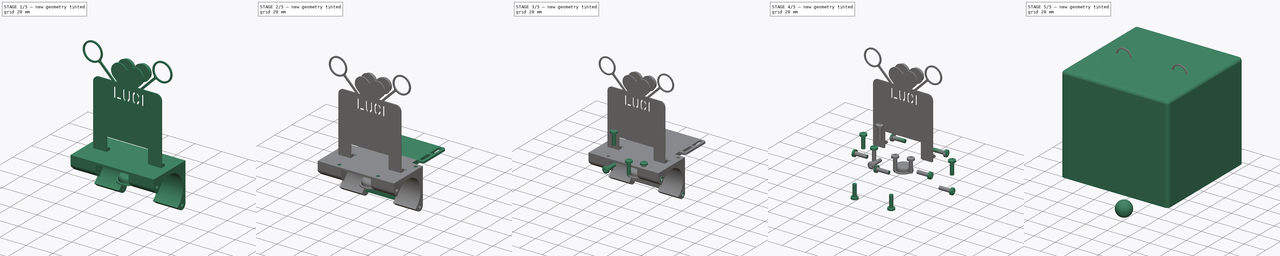
[diagram: build sequence overview — one tinted view per stage of 5, left to right]
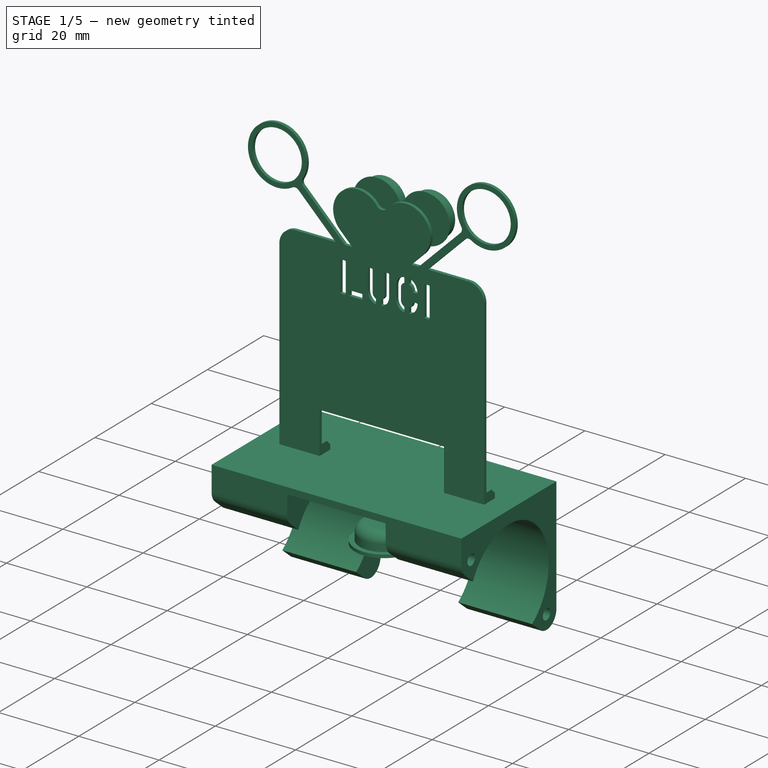
[diagram: stage 1 of 5 — iso view after this stage's code; geometry added in this stage tinted green]
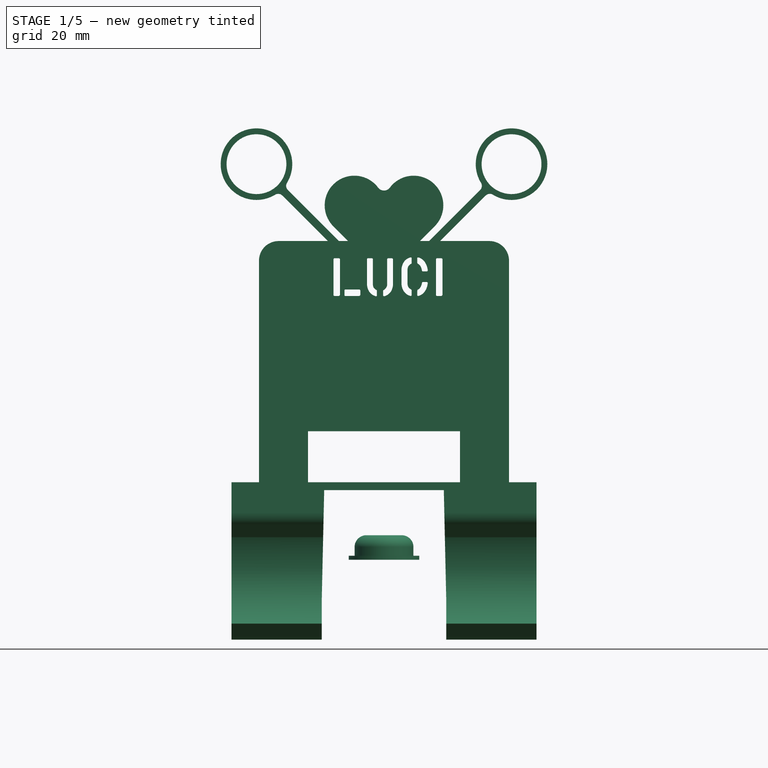
[diagram: stage 1 of 5 — front view after this stage's code; geometry added in this stage tinted green]
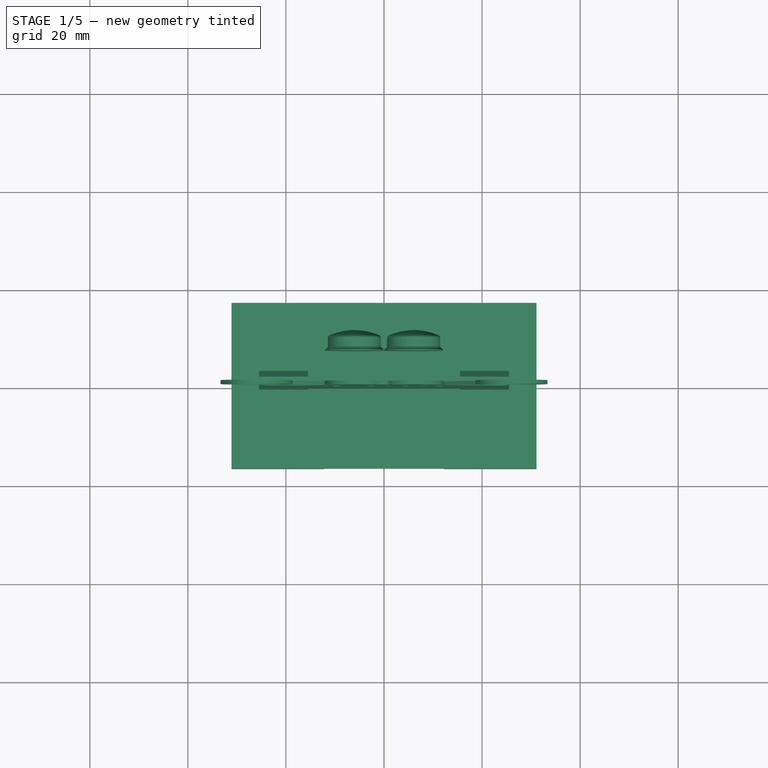
[diagram: stage 1 of 5 — top view after this stage's code; geometry added in this stage tinted green]
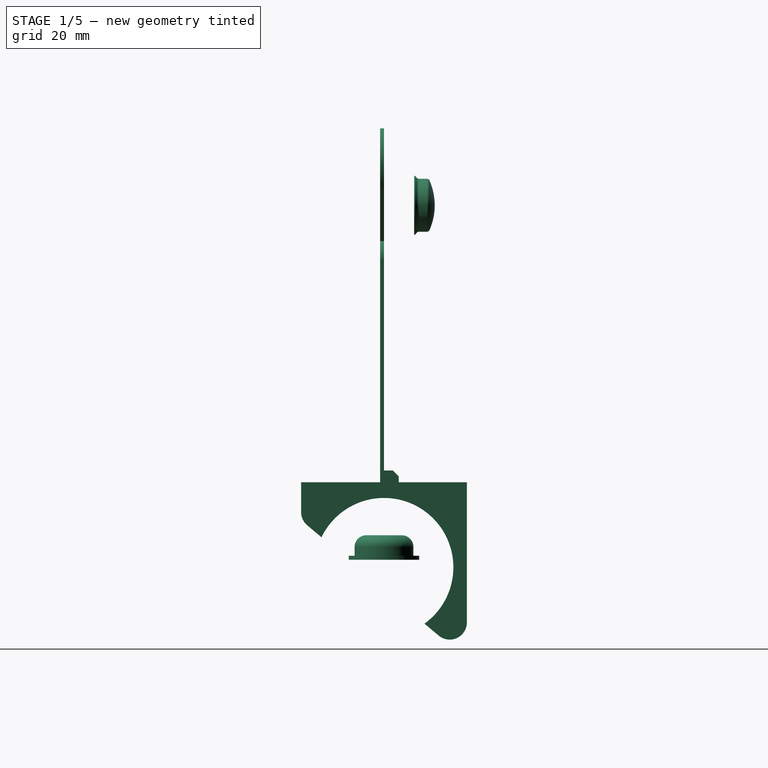
[diagram: stage 1 of 5 — right view after this stage's code; geometry added in this stage tinted green]
FCSTD DOCUMENT  (FreeCAD 0.20R29410 (Git))
Label: Escornabot-Luci_
License: Creative Commons Attribution-NonCommercial-ShareAlike
LicenseURL: http://creativecommons.org/licenses/by-nc-sa/4.0/
objects: Part::Feature×49, Sketcher::SketchObject×36, PartDesign::Pad×23, Part::FeaturePython×17, PartDesign::Pocket×12, PartDesign::Body×9, PartDesign::Chamfer×6, App::Part×5, PartDesign::Mirrored×4, PartDesign::Fillet×3, App::DocumentObjectGroup×3, PartDesign::Revolution×2, Part::Compound×2, Part::Sphere×1, Spreadsheet::Sheet×1, Part::Part2DObjectPython×1, PartDesign::Draft×1
note: 213 computed .brp shape members not serialized (recipe doc carries the construction recipe); baked Part::Feature solids carry a one-line shape summary decoded from their .brp

FEATURE [Sketcher::SketchObject] Sketch011  label="Sketch-powerbank-profile"
  FullyConstrained = true
  MapMode = 5
  Placement = pos=(0,0,0) rot=(1,0,0;1.5708rad)
  Support = -> [XZ_Plane014]
  sketch-geometry (11):
    g0: LineSegment StartX=-31.1 StartY=-18.1 StartZ=0 EndX=-31.1 EndY=14 EndZ=0
    g1: LineSegment StartX=-31.1 StartY=14 StartZ=0 EndX=31.1 EndY=14 EndZ=0
    g2: LineSegment StartX=31.1 StartY=14 StartZ=0 EndX=31.1 EndY=-18.1 EndZ=0
    g3: LineSegment StartX=31.1 StartY=-18.1 StartZ=0 EndX=12.7 EndY=-18.1 EndZ=0
    g4: LineSegment StartX=12.7 StartY=-18.1 StartZ=0 EndX=12.7 EndY=-10.1 EndZ=0
    g5: LineSegment StartX=12.7 StartY=-10.1 StartZ=0 EndX=12.2 EndY=12.4 EndZ=0
    g6: LineSegment StartX=12.2 StartY=12.4 StartZ=0 EndX=-12.2 EndY=12.4 EndZ=0
    g7: LineSegment StartX=-12.2 StartY=12.4 StartZ=0 EndX=-12.7 EndY=-10.1 EndZ=0
    g8: LineSegment StartX=-12.7 StartY=-10.1 StartZ=0 EndX=-12.7 EndY=-18.1 EndZ=0
    g9: LineSegment StartX=-12.7 StartY=-18.1 StartZ=0 EndX=-31.1 EndY=-18.1 EndZ=0
    g10: LineSegment StartX=-12.7 StartY=-10.1 StartZ=0 EndX=12.7 EndY=-10.1 EndZ=0
  constraints (29):
    c: Vertical(g0)
    c: Coincident(g0,g1)
    c: Coincident(g1,g2)
    c: Vertical(g2)
    c: Coincident(g2,g3)
    c: Horizontal(g3)
    c: Coincident(g3,g4)
    c: Vertical(g4)
    c: Coincident(g4,g5)
    c: Coincident(g5,g6)
    c: Coincident(g6,g7)
    c: Coincident(g7,g8)
    c: Vertical(g8)
    c: Coincident(g8,g9)
    c: Coincident(g9,g0)
    c: Horizontal(g9)
    c: Symmetric(g8,g3,g-2)
    c: Horizontal(g7,g4)
    c: Symmetric(g6,g5,g-2)
    c: DistanceY(g-1,g1) = 14
    c: DistanceY(g5,g1) = 1.6
    c: DistanceX(g6,g6) = 24.4
    c: DistanceX(g7,g4) = 25.4
    c: DistanceY(g5,g5) = 22.5
    c: DistanceX(g1,g1) = 62.2
    c: Symmetric(g0,g1,g-2)
    c: DistanceY(g0,g0) = 32.1
    c: Coincident(g10,g7)
    c: Coincident(g10,g4)
FEATURE [PartDesign::Pad] Pad007  label="Pad-powerbank-profile"
  Direction = (0,-1,-2e-16)
  Length = 33.8
  Length2 = 10
  Midplane = true
  Placement = pos=(0,0,0) rot=(1,0,0;1.5708rad)
  Profile = -> Sketch011
  ReferenceAxis = -> Sketch011 [N_Axis]
  Type = 0
FEATURE [Sketcher::SketchObject] Sketch012  label="Sketch-motor-recess"
  FullyConstrained = true
  MapMode = 5
  Placement = pos=(0,0,0) rot=(0.57735,0.57735,0.57735;2.0944rad)
  Support = -> [YZ_Plane014]
  expr: Constraints[41] = <<Config>>.sh_diameter
  sketch-geometry (16):
    g0: LineSegment StartX=-16.9058 StartY=14 StartZ=0 EndX=-16.9058 EndY=7.89878 EndZ=0
    g1: ArcOfCircle CenterX=-13.4058 CenterY=7.89878 CenterZ=0 NormalX=0 NormalY=0 NormalZ=1 AngleXU=0 Radius=3.5 StartAngle=3.14159 EndAngle=4.01426
    g2: ArcOfCircle CenterX=0 CenterY=-3.35 CenterZ=0 NormalX=0 NormalY=0 NormalZ=1 AngleXU=0 Radius=14.15 StartAngle=5.33511 EndAngle=8.97659
    g3: LineSegment StartX=8.25295 StartY=-14.844 StartZ=0 EndX=11.156 EndY=-17.2799 EndZ=0
    g4: ArcOfCircle CenterX=13.4058 CenterY=-14.5988 CenterZ=0 NormalX=0 NormalY=0 NormalZ=1 AngleXU=0 Radius=3.5 StartAngle=4.01426 EndAngle=6.28319
    g5: LineSegment StartX=16.9058 StartY=-14.5988 StartZ=0 EndX=16.9058 EndY=14 EndZ=0
    g6: LineSegment StartX=16.9058 StartY=14 StartZ=0 EndX=-16.9058 EndY=14 EndZ=0
    g7: Circle CenterX=13.4058 CenterY=-14.5988 CenterZ=0 NormalX=0 NormalY=0 NormalZ=1 AngleXU=0 Radius=1.325
    g8: Circle CenterX=-13.4058 CenterY=7.89878 CenterZ=0 NormalX=0 NormalY=0 NormalZ=1 AngleXU=0 Radius=1.325
    g9: LineSegment StartX=-13.4058 StartY=7.89878 StartZ=0 EndX=13.4058 EndY=-14.5988 EndZ=0
    g10: LineSegment StartX=-15.6555 StartY=5.21763 StartZ=0 EndX=-12.7525 EndY=2.78166 EndZ=0
    g11: LineSegment StartX=16.9058 StartY=10.8 StartZ=0 EndX=0 EndY=10.8 EndZ=0
    g12: LineSegment StartX=-25 StartY=18 StartZ=0 EndX=25 EndY=18 EndZ=0
    g13: LineSegment StartX=25 StartY=18 StartZ=0 EndX=25 EndY=-22 EndZ=0
    g14: LineSegment StartX=25 StartY=-22 StartZ=0 EndX=-25 EndY=-22 EndZ=0
    g15: LineSegment StartX=-25 StartY=-22 StartZ=0 EndX=-25 EndY=18 EndZ=0
  constraints (42):
    c: Vertical(g0)
    c: Tangent(g0,g1) = -1.5708
    c: Coincident(g2,g3)
    c: Tangent(g3,g4) = -1.5708
    c: Tangent(g4,g5) = -1.5708
    c: Coincident(g5,g6)
    c: Coincident(g6,g0)
    c: Equal(g1,g4)
    c: Radius(g1) = 3.5
    c: Vertical(g5)
    c: Coincident(g7,g4)
    c: Radius(g2) = 14.15
    c: Coincident(g9,g8)
    c: Coincident(g9,g4)
    c: Symmetric(g8,g4,g2)
    c: Distance(g8,g2) = 17.5
    c: Angle(g3) = -0.698132
    c: Coincident(g1,g8)
    c: Coincident(g10,g2)
    c: Tangent(g10,g1) = -1.5708
    c: Parallel(g10,g3)
    c: Equal(g8,g7)
    c: Horizontal(g6)
    c: PointOnObject(g11,g5)
    c: Horizontal(g11)
    c: Tangent(g11,g2) = -1.5708
    c: PointOnObject(g2,g-2)
    c: Angle(g9,g6) = 0.698132
    c: DistanceY(g11,g5) = 3.2
    c: DistanceY(g5) = 14
    c: Coincident(g12,g13)
    c: Coincident(g13,g14)
    c: Coincident(g14,g15)
    c: Coincident(g15,g12)
    c: Horizontal(g12)
    c: Vertical(g13)
    c: Vertical(g15)
    c: DistanceX(g12,g12) = 50
    c: DistanceY(g15,g15) = 40
    c: Symmetric(g14,g13,g-2)
    c: DistanceY(g14,g-1) = 22
    c: Diameter(g8) = 2.65
FEATURE [PartDesign::Pocket] Pocket002  label="Pocket-motor-recess"
  BaseFeature = -> Pad007
  Direction = (-1,2e-16,-3e-16)
  Length = 65
  Length2 = 5
  Midplane = true
  Placement = pos=(0,0,0) rot=(1,0,0;1.5708rad)
  Profile = -> Sketch012
  ReferenceAxis = -> Sketch012 [N_Axis]
  Type = 0
FEATURE [Sketcher::SketchObject] Sketch024  label="Sketch-motor-screw-holes"
  AttachmentOffset = pos=(0,0,31.1) rot=(0,0,1;0rad)
  FullyConstrained = true
  MapMode = 5
  Placement = pos=(31.1,-6.9e-15,6.9e-15) rot=(0.57735,0.57735,0.57735;2.0944rad)
  Support = -> [YZ_Plane014]
  expr: Constraints[11] = <<Config>>.sh_diameter
  sketch-geometry (4):
    g0: Circle CenterX=-13.4058 CenterY=7.89878 CenterZ=0 NormalX=0 NormalY=0 NormalZ=1 AngleXU=0 Radius=1.325
    g1: ArcOfCircle CenterX=0 CenterY=-3.35 CenterZ=0 NormalX=0 NormalY=0 NormalZ=1 AngleXU=0 Radius=14.15 StartAngle=5.58505 EndAngle=8.72665
    g2: LineSegment StartX=-13.4058 StartY=7.89878 StartZ=0 EndX=13.4058 EndY=-14.5988 EndZ=0
    g3: Circle CenterX=13.4058 CenterY=-14.5988 CenterZ=0 NormalX=0 NormalY=0 NormalZ=1 AngleXU=0 Radius=1.325
  constraints (12):
    c: PointOnObject(g1,g-2)
    c: Coincident(g2,g0)
    c: Coincident(g3,g2)
    c: Distance(g1,g0) = 17.5
    c: Equal(g0,g3)
    c: Radius(g1) = 14.15
    c: PointOnObject(g1,g2)
    c: PointOnObject(g1,g2)
    c: Angle(g2,g-1) = 0.698132
    c: DistanceY(g1) = -3.35
    c: Symmetric(g3,g0,g1)
    c: Diameter(g0) = 2.65
FEATURE [PartDesign::Pocket] Pocket005  label="Pocket-motor-screw-holes"
  BaseFeature = -> Pocket002
  Direction = (-1,2e-16,-3e-16)
  Length = 12
  Length2 = 5
  Placement = pos=(0,0,0) rot=(1,0,0;1.5708rad)
  Profile = -> Sketch024
  ReferenceAxis = -> Sketch024 [N_Axis]
  Type = 0
FEATURE [App::DocumentObjectGroup] Group002  label="screws"
  Group = -> [Screw,Screw001,Screw002,Screw003,Screw004,Screw005,Screw012,Screw013,Screw014,Screw015,Screw016,Screw017,Screw018,Screw019,Screw020]
FEATURE [Part::Part2DObjectPython] ShapeString  label="ShapeString-name"  # Draft 2D object (typed FeaturePython)
  AttachmentOffset = pos=(-20,41,0) rot=(0,0,1;0rad)
  FontFile = escornaface.otf
  Placement = pos=(-11.115,-1,52) rot=(1,0,0;1.5708rad)
  Size = 4
  String = luci
  Tracking = 0
  expr: .Placement.Base.x = .Shape.BoundBox.XLength / -2
FEATURE [Sketcher::SketchObject] Sketch044  label="Sketch-escornaface"
  FullyConstrained = true
  MapMode = 5
  Placement = pos=(0,0,0) rot=(1,0,0;1.5708rad)
  Support = -> [XZ_Plane002]
  sketch-geometry (10):
    g0: LineSegment StartX=-25.5 StartY=11.2 StartZ=0 EndX=-25.5 EndY=59.2 EndZ=0
    g1: ArcOfCircle CenterX=-21.5 CenterY=59.2 CenterZ=0 NormalX=0 NormalY=0 NormalZ=1 AngleXU=0 Radius=4 StartAngle=1.5708 EndAngle=3.14159
    g2: LineSegment StartX=-21.5 StartY=63.2 StartZ=0 EndX=21.5 EndY=63.2 EndZ=0
    g3: ArcOfCircle CenterX=21.5 CenterY=59.2 CenterZ=0 NormalX=0 NormalY=0 NormalZ=1 AngleXU=0 Radius=4 StartAngle=4e-16 EndAngle=1.5708
    g4: LineSegment StartX=25.5 StartY=59.2 StartZ=0 EndX=25.5 EndY=11.2 EndZ=0
    g5: LineSegment StartX=25.5 StartY=11.2 StartZ=0 EndX=15.5 EndY=11.2 EndZ=0
    g6: LineSegment StartX=15.5 StartY=11.2 StartZ=0 EndX=15.5 EndY=24.4 EndZ=0
    g7: LineSegment StartX=15.5 StartY=24.4 StartZ=0 EndX=-15.5 EndY=24.4 EndZ=0
    g8: LineSegment StartX=-15.5 StartY=24.4 StartZ=0 EndX=-15.5 EndY=11.2 EndZ=0
    g9: LineSegment StartX=-15.5 StartY=11.2 StartZ=0 EndX=-25.5 EndY=11.2 EndZ=0
  constraints (27):
    c: Vertical(g0)
    c: Tangent(g0,g1) = 1.5708
    c: Tangent(g1,g2) = 1.5708
    c: Tangent(g2,g3) = 1.5708
    c: Tangent(g3,g4) = 1.5708
    c: Coincident(g4,g5)
    c: Horizontal(g5)
    c: Coincident(g5,g6)
    c: Vertical(g6)
    c: Coincident(g6,g7)
    c: Horizontal(g7)
    c: Coincident(g7,g8)
    c: Vertical(g8)
    c: Coincident(g8,g9)
    c: Coincident(g9,g0)
    c: Horizontal(g9)
    c: Equal(g9,g5)
    c: Vertical(g4)
    c: Horizontal(g2)
    c: Symmetric(g8,g5,g-2)
    c: Equal(g1,g3)
    c: DistanceX(g0,g3) = 51
    c: DistanceY(g4,g2) = 52
    c: DistanceX(g5,g5) = 10
    c: DistanceY(g6,g6) = 13.2
    c: DistanceY(g5) = 11.2
    c: Radius(g1) = 4
FEATURE [PartDesign::Pad] Pad031  label="Pad-escornaface"
  Direction = (0,-1,-2e-16)
  Length = 0.8
  Length2 = 100
  Placement = pos=(0,0,0) rot=(1,0,0;1.5708rad)
  Profile = -> Sketch044
  Type = 0
FEATURE [Sketcher::SketchObject] Sketch046  label="Sketch-escornaface-leg-support"
  AttachmentOffset = pos=(0,0,15.5) rot=(0,0,1;0rad)
  ExternalGeometry = -> [Pad031]
  FullyConstrained = true
  MapMode = 5
  Placement = pos=(15.5,-3.4e-15,3.4e-15) rot=(0.57735,0.57735,0.57735;2.0944rad)
  Support = -> [YZ_Plane002]
  sketch-geometry (5):
    g0: LineSegment StartX=3 StartY=14 StartZ=0 EndX=0 EndY=14 EndZ=0
    g1: LineSegment StartX=0 StartY=14 StartZ=0 EndX=0 EndY=16.4 EndZ=0
    g2: LineSegment StartX=3 StartY=15.2 StartZ=0 EndX=3 EndY=14 EndZ=0
    g3: LineSegment StartX=0 StartY=16.4 StartZ=0 EndX=1.8 EndY=16.4 EndZ=0
    g4: LineSegment StartX=1.8 StartY=16.4 StartZ=0 EndX=3 EndY=15.2 EndZ=0
  constraints (15):
    c: Coincident(g0,g1)
    c: Coincident(g2,g0)
    c: Vertical(g1)
    c: Coincident(g3,g1)
    c: Horizontal(g3)
    c: PointOnObject(g1,g-2)
    c: DistanceY(g1,g1) = 2.4
    c: DistanceY(g-3,g0) = 2.8
    c: Horizontal(g0)
    c: DistanceX(g0,g0) = 3
    c: Vertical(g2)
    c: Coincident(g3,g4)
    c: Coincident(g2,g4)
    c: Angle(g4,g0) = 0.785398
    c: DistanceY(g4,g4) = 1.2
FEATURE [PartDesign::Pad] Pad032  label="Pad-escornaface-leg-support"
  BaseFeature = -> Pad031
  Direction = (1,-2e-16,3e-16)
  Length = 10
  Length2 = 10
  Placement = pos=(0,0,0) rot=(1,0,0;1.5708rad)
  Profile = -> Sketch046
  ReferenceAxis = -> Sketch046 [N_Axis]
  Refine = true
  Type = 0
FEATURE [PartDesign::Mirrored] Mirrored  label="Mirrored-escornaface-leg-support"
  BaseFeature = -> Pad032
  MirrorPlane = -> YZ_Plane002
  Originals = -> [Pad032]
  Placement = pos=(0,0,0) rot=(1,0,0;1.5708rad)
  Refine = true
FEATURE [PartDesign::Chamfer] Chamfer007  label="Chamfer-legs-corners"
  Angle = 45
  Base = -> Mirrored [Edge52,Edge43,Edge23,Edge24]
  BaseFeature = -> Mirrored
  ChamferType = 0
  FlipDirection = false
  Placement = pos=(0,0,0) rot=(1,0,0;1.5708rad)
  Size = 0.6
  Size2 = 1
  SupportTransform = false
  UseAllEdges = false
FEATURE [PartDesign::Body] Body003004002007001008  label="Body-chasis"
  Group = -> [Sketch011,Pad007,Sketch012,Pocket002,Sketch013,Sketch014,Sketch019,Sketch020,Sketch023,Sketch024,Pocket005,Mirrored007,Pad016,Pad017,Pad018,Mirrored008,Pocket006,Pocket007,Chamfer003,Sketch025,Pad019,Sketch026,Pad020,Chamfer,Sketch045,Pocket012,Chamfer006,Sketch004,Pad033,Draft,Sketch047,Pad034,Mirrored009]
  Origin = -> Origin014
  Tip = -> Mirrored009
FEATURE [Part::Feature] Body003004002007001008006  label="chasis"
  Placement = pos=(-2e-15,0,14) rot=(0,1,0;3.14159rad)
  shape: bbox 63.4 x 65.8 x 32.1 mm, 158 faces (baked)
FEATURE [Sketcher::SketchObject] Sketch005  label="Sketch-eyes-holder"
  FullyConstrained = true
  MapMode = 5
  Placement = pos=(0,-0.8,-2e-16) rot=(1,0,0;1.5708rad)
  Support = -> [Chamfer007]
  sketch-geometry (9):
    g0: LineSegment StartX=-7.12263 StartY=63 StartZ=0 EndX=-10.328 EndY=66.2054 EndZ=0
    g1: ArcOfCircle CenterX=-6.05 CenterY=70.4834 CenterZ=0 NormalX=0 NormalY=0 NormalZ=1 AngleXU=0 Radius=6.05 StartAngle=0.64129 EndAngle=3.92699
    g2: Circle CenterX=-6.05 CenterY=70.4834 CenterZ=0 NormalX=0 NormalY=0 NormalZ=1 AngleXU=0 Radius=6.05
    g3: Circle CenterX=6.05 CenterY=70.4834 CenterZ=0 NormalX=0 NormalY=0 NormalZ=1 AngleXU=0 Radius=6.05
    g4: LineSegment StartX=-6.05 StartY=70.4834 StartZ=0 EndX=6.05 EndY=70.4834 EndZ=0
    g5: ArcOfCircle CenterX=7.2409e-12 CenterY=75 CenterZ=0 NormalX=0 NormalY=0 NormalZ=1 AngleXU=0 Radius=1.5 StartAngle=3.78288 EndAngle=5.64189
    g6: ArcOfCircle CenterX=6.05 CenterY=70.4834 CenterZ=0 NormalX=0 NormalY=0 NormalZ=1 AngleXU=0 Radius=6.05 StartAngle=5.49779 EndAngle=8.78349
    g7: LineSegment StartX=10.328 StartY=66.2054 StartZ=0 EndX=7.12263 EndY=63 EndZ=0
    g8: LineSegment StartX=7.12263 StartY=63 StartZ=0 EndX=-7.12263 EndY=63 EndZ=0
  constraints (21):
    c: Tangent(g0,g1) = 1.5708
    c: Tangent(g3,g2)
    c: Equal(g2,g3)
    c: Diameter(g2) = 12.1
    c: Coincident(g4,g2)
    c: Coincident(g4,g3)
    c: Symmetric(g3,g2,g-2)
    c: Coincident(g1,g2)
    c: Tangent(g1,g5) = 1.5708
    c: PointOnObject(g5,g3)
    c: Tangent(g5,g6) = 1.5708
    c: Tangent(g6,g7) = 1.5708
    c: Coincident(g7,g8)
    c: Coincident(g8,g0)
    c: PointOnObject(g0,g2)
    c: Coincident(g6,g3)
    c: Perpendicular(g7,g0)
    c: Symmetric(g0,g7,g-2)
    c: Radius(g5) = 1.5
    c: DistanceY(g7,g5) = 12
    c: DistanceY(g7) = 63
FEATURE [PartDesign::Pad] Pad035  label="Pad-eyes-holder"
  BaseFeature = -> Chamfer007
  Direction = (0,-1,-2e-16)
  Length = 0.8
  Length2 = 10
  Placement = pos=(0,0,0) rot=(1,0,0;1.5708rad)
  Profile = -> Sketch005
  ReferenceAxis = -> Sketch005 [N_Axis]
  Refine = true
  Reversed = true
  Type = 0
FEATURE [PartDesign::Pocket] Pocket013  label="Pocket-name"
  BaseFeature = -> Pad035
  Direction = (0,1,-2e-16)
  Length = 5
  Length2 = 5
  Midplane = true
  Placement = pos=(0,0,0) rot=(1,0,0;1.5708rad)
  Profile = -> ShapeString
  ReferenceAxis = -> ShapeString [N_Axis]
  Type = 0
FEATURE [Part::Feature] Body003004002007001011003005  label="cover"
  shape: bbox 12.99 x 12.99 x 4 mm, 6 faces (baked)
FEATURE [Part::Feature] Body002001  label="base"
  shape: bbox 12 x 12 x 0.2 mm, 3 faces (baked)
FEATURE [Part::Feature] Body003001  label="pupil"
  shape: bbox 5.953 x 5.953 x 0.6 mm, 5 faces (baked)
FEATURE [Part::Feature] Body003004002007001011003006  label="cover001"
  shape: bbox 12.99 x 12.99 x 4 mm, 6 faces (baked)
FEATURE [Part::Feature] Body003004002007001011005  label="base001"
  shape: bbox 12 x 12 x 0.2 mm, 3 faces (baked)
FEATURE [Part::Feature] Body003004002007001011006  label="pupil001"
  shape: bbox 5.953 x 5.953 x 0.6 mm, 5 faces (baked)
FEATURE [Part::Compound] Compound  label="right-eye"
  Links = -> [Body003004002007001011003005,Body002001,Body003001]
  Placement = pos=(6.05,6.35,70.5) rot=(0,0.707107,0.707107;3.14159rad)
FEATURE [Part::Compound] Compound003  label="left-eye"
  Links = -> [Body003004002007001011003006,Body003004002007001011005,Body003004002007001011006]
  Placement = pos=(-6.05,6.35,70.5) rot=(0,0.707107,0.707107;3.14159rad)
FEATURE [Sketcher::SketchObject] Sketch021  label="Sketch-neopixel-support-hole"
  FullyConstrained = true
  MapMode = 5
  Support = -> [XY_Plane012]
  sketch-geometry (14):
    g0: LineSegment StartX=-3.8 StartY=-1 StartZ=0 EndX=-3.8 EndY=1 EndZ=0
    g1: LineSegment StartX=-3.8 StartY=1 StartZ=0 EndX=-2.7 EndY=1 EndZ=0
    g2: LineSegment StartX=-2.7 StartY=1 StartZ=0 EndX=-2.7 EndY=2.7 EndZ=0
    g3: LineSegment StartX=-2.7 StartY=2.7 StartZ=0 EndX=2.7 EndY=2.7 EndZ=0
    g4: LineSegment StartX=2.7 StartY=2.7 StartZ=0 EndX=2.7 EndY=1 EndZ=0
    g5: LineSegment StartX=2.7 StartY=1 StartZ=0 EndX=3.8 EndY=1 EndZ=0
    g6: LineSegment StartX=3.8 StartY=1 StartZ=0 EndX=3.8 EndY=-1 EndZ=0
    g7: LineSegment StartX=3.8 StartY=-1 StartZ=0 EndX=2.7 EndY=-1 EndZ=0
    g8: LineSegment StartX=2.7 StartY=-1 StartZ=0 EndX=2.7 EndY=-2.7 EndZ=0
    g9: LineSegment StartX=2.7 StartY=-2.7 StartZ=0 EndX=-2.7 EndY=-2.7 EndZ=0
    g10: LineSegment StartX=-2.7 StartY=-2.7 StartZ=0 EndX=-2.7 EndY=-1 EndZ=0
    g11: LineSegment StartX=-2.7 StartY=-1 StartZ=0 EndX=-3.8 EndY=-1 EndZ=0
    g12: Circle CenterX=0 CenterY=0 CenterZ=0 NormalX=0 NormalY=0 NormalZ=1 AngleXU=0 Radius=4.72938
    g13: LineSegment StartX=0 StartY=0 StartZ=0 EndX=4.57366 EndY=-1.20359 EndZ=0
  constraints (39):
    c: Vertical(g0)
    c: Coincident(g0,g1)
    c: Horizontal(g1)
    c: Coincident(g1,g2)
    c: Vertical(g2)
    c: Coincident(g2,g3)
    c: Horizontal(g3)
    c: Coincident(g3,g4)
    c: Vertical(g4)
    c: Coincident(g4,g5)
    c: Horizontal(g5)
    c: Coincident(g5,g6)
    c: Vertical(g6)
    c: Coincident(g6,g7)
    c: Horizontal(g7)
    c: Coincident(g7,g8)
    c: Vertical(g8)
    c: Coincident(g8,g9)
    c: Horizontal(g9)
    c: Coincident(g9,g10)
    c: Vertical(g10)
    c: Coincident(g10,g11)
    c: Horizontal(g11)
    c: Coincident(g0,g11)
    c: PointOnObject(g4,g8)
    c: PointOnObject(g10,g7)
    c: Equal(g10,g2)
    c: Equal(g1,g5)
    c: DistanceY(g0,g0) = 2
    c: Symmetric(g1,g10,g-1)
    c: Symmetric(g1,g4,g-2)
    c: DistanceX(g11,g11) = 1.1
    c: DistanceY(g2,g2) = 1.7
    c: DistanceX(g3,g3) = 5.4
    c: Coincident(g12,g-1)
    c: Coincident(g13,g12)
    c: PointOnObject(g13,g12)
    c: PointOnObject(g6,g13)
    c: Distance(g6,g13) = 0.8
FEATURE [Sketcher::SketchObject] Sketch048  label="Sketch-bubble-profile"
  FullyConstrained = true
  MapMode = 5
  Placement = pos=(0,0,0) rot=(1,0,0;1.5708rad)
  Support = -> [XZ_Plane012]
  sketch-geometry (10):
    g0: LineSegment StartX=4.8 StartY=-1.8 StartZ=0 EndX=7.2 EndY=-1.8 EndZ=0
    g1: LineSegment StartX=4.8 StartY=-1.8 StartZ=0 EndX=4.8 EndY=0 EndZ=0
    g2: LineSegment StartX=4.8 StartY=0 StartZ=0 EndX=0 EndY=0 EndZ=0
    g3: ArcOfCircle CenterX=3.6 CenterY=0.8 CenterZ=0 NormalX=0 NormalY=0 NormalZ=1 AngleXU=0 Radius=2.4 StartAngle=1e-16 EndAngle=1.5708
    g4: LineSegment StartX=6 StartY=0.8 StartZ=0 EndX=6 EndY=-1 EndZ=0
    g5: LineSegment StartX=3.6 StartY=3.2 StartZ=0 EndX=0 EndY=3.2 EndZ=0
    g6: LineSegment StartX=0 StartY=-1.4 StartZ=0 EndX=3.6 EndY=3.2 EndZ=0
    g7: LineSegment StartX=0 StartY=3.2 StartZ=0 EndX=0 EndY=0 EndZ=0
    g8: LineSegment StartX=6 StartY=-1 StartZ=0 EndX=7.2 EndY=-1 EndZ=0
    g9: LineSegment StartX=7.2 StartY=-1 StartZ=0 EndX=7.2 EndY=-1.8 EndZ=0
  constraints (28):
    c: Horizontal(g0)
    c: PointOnObject(g1,g-1)
    c: Vertical(g1)
    c: Coincident(g1,g2)
    c: Coincident(g2,g-1)
    c: Coincident(g0,g1)
    c: DistanceY(g0) = -1.8
    c: DistanceX(g2,g2) = 4.8
    c: Tangent(g3,g4) = 1.5708
    c: Radius(g3) = 2.4
    c: Tangent(g3,g5) = -1.5708
    c: Horizontal(g5)
    c: Vertical(g4)
    c: Coincident(g6,g3)
    c: Coincident(g7,g5)
    c: Coincident(g7,g2)
    c: Vertical(g7)
    c: DistanceY(g6) = -1.4
    c: PointOnObject(g6,g-2)
    c: DistanceY(g0,g3) = 5
    c: Horizontal(g8)
    c: Coincident(g8,g9)
    c: Vertical(g9)
    c: Coincident(g4,g8)
    c: DistanceX(g8,g8) = 1.2
    c: DistanceY(g9,g9) = 0.8
    c: DistanceX(g0,g4) = 1.2
    c: Coincident(g0,g9)
FEATURE [PartDesign::Revolution] Revolution001  label="Revolution-bubble"
  Angle = 360
  Axis = (0,-2e-16,1)
  Base = (0,0,0)
  Placement = pos=(0,0,0) rot=(1,0,0;1.5708rad)
  Profile = -> Sketch048
  ReferenceAxis = -> Sketch048 [V_Axis]
  Reversed = true
FEATURE [PartDesign::Pocket] Pocket014  label="Pocket-neopixel-support-hole"
  BaseFeature = -> Revolution001
  Direction = (0,0,-1)
  Length = 1.8
  Length2 = 100
  Placement = pos=(0,0,0) rot=(1,0,0;1.5708rad)
  Profile = -> Sketch021
  Reversed = true
  Type = 0
FEATURE [PartDesign::Body] Body004005  label="Body-RGB-cap"
  Group = -> [Sketch048,Revolution001,Sketch021,Pocket014]
  Origin = -> Origin012
  Placement = pos=(0,25.25,64.2) rot=(0,0,1;0rad)
  Tip = -> Pocket014
FEATURE [Part::Feature] Group001  label="neopixel"
  Placement = pos=(0,25.25,62.75) rot=(0,0,1;0rad)
  shape: bbox 9 x 9 x 3.101 mm, 153 faces, 6 solids (baked)
FEATURE [Sketcher::SketchObject] Sketch006  label="Sketch-NeoPixel-holders"
  FullyConstrained = true
  MapMode = 5
  Placement = pos=(0,0,0) rot=(1,0,0;1.5708rad)
  Support = -> [XZ_Plane002]
  sketch-geometry (16):
    g0: LineSegment StartX=9 StartY=63 StartZ=0 EndX=19.6066 EndY=73.6066 EndZ=0
    g1: ArcOfCircle CenterX=26.0139 CenterY=78.8826 CenterZ=0 NormalX=0 NormalY=0 NormalZ=1 AngleXU=0 Radius=7.3 StartAngle=4.16451 EndAngle=9.97265
    g2: LineSegment StartX=20.738 StartY=72.4752 StartZ=0 EndX=10.1314 EndY=61.8686 EndZ=0
    g3: LineSegment StartX=10.1314 StartY=61.8686 StartZ=0 EndX=9 EndY=63 EndZ=0
    g4: Circle CenterX=26.0139 CenterY=78.8826 CenterZ=0 NormalX=0 NormalY=0 NormalZ=1 AngleXU=0 Radius=6.1
    g5: ArcOfCircle CenterX=21.5865 CenterY=71.6267 CenterZ=0 NormalX=0 NormalY=0 NormalZ=1 AngleXU=0 Radius=1.2 StartAngle=1.02292 EndAngle=2.35619
    g6: ArcOfCircle CenterX=18.7581 CenterY=74.4551 CenterZ=0 NormalX=0 NormalY=0 NormalZ=1 AngleXU=0 Radius=1.2 StartAngle=5.49779 EndAngle=6.83106
    g7: LineSegment StartX=26.0139 StartY=78.8826 StartZ=0 EndX=9.56569 EndY=62.4343 EndZ=0
    g8: LineSegment StartX=-9 StartY=63 StartZ=0 EndX=-19.6066 EndY=73.6066 EndZ=0
    g9: ArcOfCircle CenterX=-26.0139 CenterY=78.8826 CenterZ=0 NormalX=0 NormalY=0 NormalZ=1 AngleXU=0 Radius=7.3 StartAngle=5.73531 EndAngle=11.5435
    g10: LineSegment StartX=-20.738 StartY=72.4752 StartZ=0 EndX=-10.1314 EndY=61.8686 EndZ=0
    g11: LineSegment StartX=-10.1314 StartY=61.8686 StartZ=0 EndX=-9 EndY=63 EndZ=0
    g12: Circle CenterX=-26.0139 CenterY=78.8826 CenterZ=0 NormalX=0 NormalY=0 NormalZ=1 AngleXU=0 Radius=6.1
    g13: ArcOfCircle CenterX=-21.5865 CenterY=71.6267 CenterZ=0 NormalX=0 NormalY=0 NormalZ=1 AngleXU=0 Radius=1.2 StartAngle=0.785398 EndAngle=2.11867
    g14: ArcOfCircle CenterX=-18.7581 CenterY=74.4551 CenterZ=0 NormalX=0 NormalY=0 NormalZ=1 AngleXU=0 Radius=1.2 StartAngle=2.59372 EndAngle=3.92699
    g15: LineSegment StartX=-26.0139 StartY=78.8826 StartZ=0 EndX=-9.56569 EndY=62.4343 EndZ=0
  constraints (41):
    c: Coincident(g2,g3)
    c: Coincident(g3,g0)
    c: Radius(g4) = 6.1
    c: Radius(g1) = 7.3
    c: Tangent(g1,g5) = 1.5708
    c: Tangent(g2,g5) = -1.5708
    c: Tangent(g1,g6) = 1.5708
    c: Tangent(g0,g6) = -1.5708
    c: Equal(g6,g5)
    c: Radius(g6) = 1.2
    c: Perpendicular(g2,g3)
    c: Coincident(g1,g4)
    c: Coincident(g7,g1)
    c: PointOnObject(g7,g3)
    c: Distance(g3) = 1.6
    c: Distance(g0) = 15
    c: Symmetric(g0,g2,g7)
    c: Perpendicular(g3,g0)
    c: Angle(g7) = -2.35619
    c: DistanceY(g0) = 63
    c: DistanceX(g0) = 9
    c: Coincident(g10,g11)
    c: Coincident(g11,g8)
    c: Radius(g12) = 6.1
    c: Radius(g9) = 7.3
    c: Tangent(g9,g13) = 1.5708
    c: Tangent(g10,g13) = 1.5708
    c: Tangent(g9,g14) = 1.5708
    c: Tangent(g8,g14) = 1.5708
    c: Equal(g14,g13)
    c: Radius(g14) = 1.2
    c: Perpendicular(g10,g11)
    c: Coincident(g9,g12)
    c: Coincident(g15,g9)
    c: PointOnObject(g15,g11)
    c: Symmetric(g8,g10,g15)
    c: Perpendicular(g11,g8)
    c: Angle(g15) = -0.785398
    c: Symmetric(g8,g0,g-2)
    c: Equal(g11,g3)
    c: Equal(g8,g0)
FEATURE [PartDesign::Pad] Pad036  label="Pad-NeoPixel-holders"
  BaseFeature = -> Pocket013
  Direction = (0,-1,-2e-16)
  Length = 0.8
  Length2 = 10
  Placement = pos=(0,0,0) rot=(1,0,0;1.5708rad)
  Profile = -> Sketch006
  ReferenceAxis = -> Sketch006 [N_Axis]
  Refine = true
  Type = 0
FEATURE [PartDesign::Body] Body003004002007001011003  label="Body-escornaface"
  Group = -> [Sketch044,Pad031,ShapeString,Sketch046,Pad032,Mirrored,Chamfer007,Sketch005,Pad035,Pocket013,Sketch006,Pad036]
  Origin = -> Origin002
  Placement = pos=(1e-15,5.3,0) rot=(0,0,1;3.14159rad)
  Tip = -> Pad036
FEATURE [App::Part] Part  label="Part-Luci"
  Group = -> [Body003004002007001008,Body003004002007001009,Body003004002007001010,Body003004002007001011,Body003004002007001011002,Body003004002007001011003,Body004005,Spreadsheet]
  Origin = -> Origin010
FEATURE [Part::Feature] Pad036001  label="escornaface"
  Placement = pos=(16.3,78.9,0.8) rot=(0.707107,0.707107,0;3.14159rad)
  shape: bbox 74.98 x 66.63 x 3.8 mm, 121 faces (baked)
FEATURE [App::DocumentObjectGroup] Group003  label="flat"
  Group = -> [Body003004002007001009001,Body003004002007001010001,Body003004002007001011004,Body003004002007001011002001,Body003004002007001008006,Pad036001]
FEATURE [Part::Feature] Body003004002007001011003007  label="wheel-L"
  Placement = pos=(-40,5.2,2.8) rot=(0,0,-1;1.5708rad)
  shape: bbox 10.4 x 79.01 x 79.01 mm, 75 faces (baked)
FEATURE [Part::Feature] Torus001  label="o-ring-L"
  Placement = pos=(-40,5.2,2.8) rot=(0,-1,0;1.5708rad)
  shape: bbox 3 x 82.26 x 82.26 mm, 1 faces (baked)
FEATURE [Part::Feature] Body003004002007001011003008  label="wheel-R"
  Placement = pos=(40,5.2,2.8) rot=(0,0,1;1.5708rad)
  shape: bbox 10.4 x 79.01 x 79.01 mm, 83 faces (baked)
FEATURE [Part::Feature] Torus001002  label="o-ring-R"
  Placement = pos=(40,5.2,2.8) rot=(0,-1,0;1.5708rad)
  shape: bbox 3 x 82.26 x 82.26 mm, 1 faces (baked)
FEATURE [App::DocumentObjectGroup] Group  label="elements"
  Group = -> [Body003004002007001003,Compound002,Fusion014003,Compound001,Fusion001,Part001008,Part_minibreadboard,Part001006,Sphere,Compound,Compound003,Group001,Body003004002007001011003007,Torus001,Body003004002007001011003008,Torus001002]
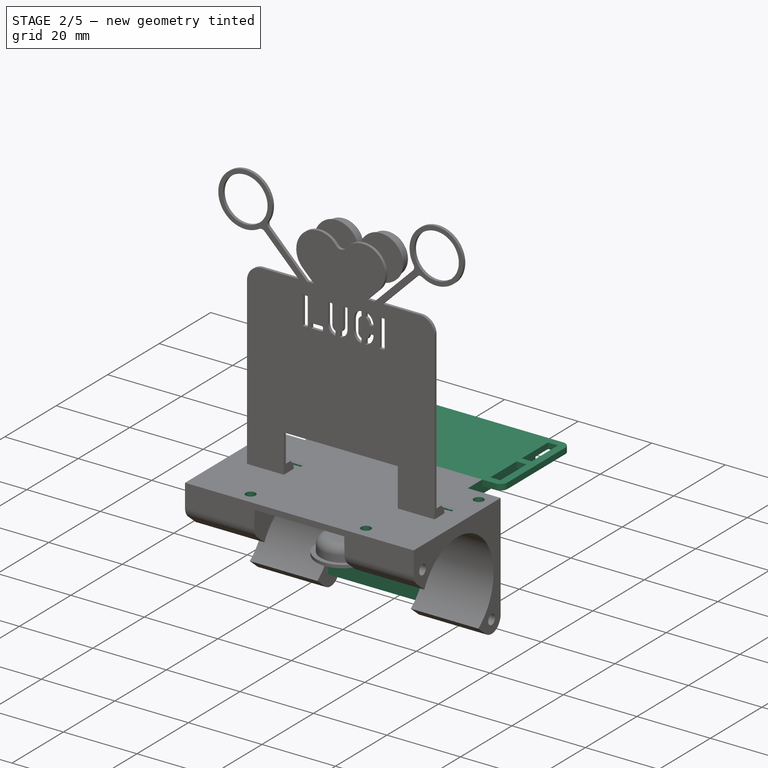
[diagram: stage 2 of 5 — iso view after this stage's code; geometry added in this stage tinted green]
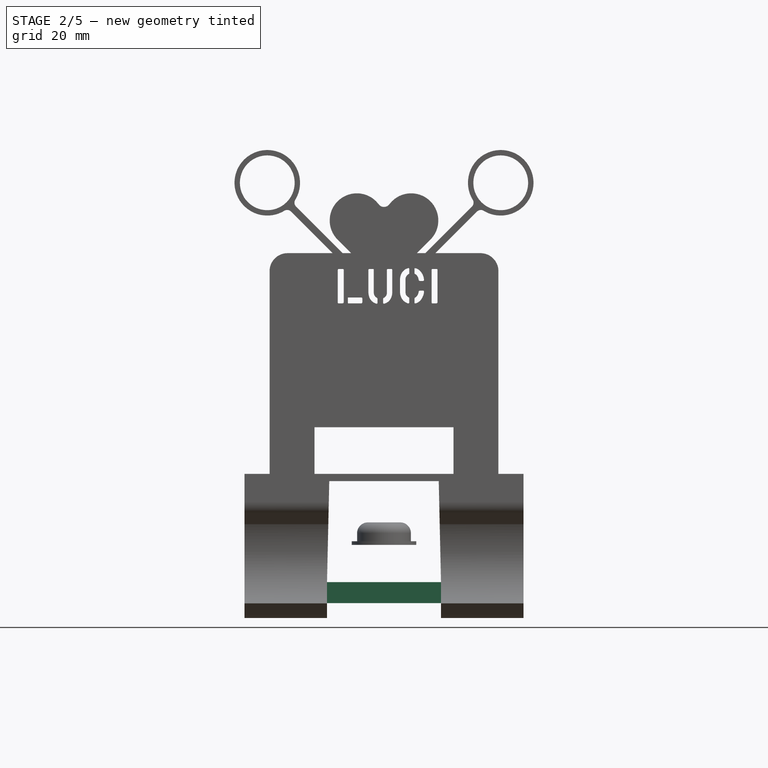
[diagram: stage 2 of 5 — front view after this stage's code; geometry added in this stage tinted green]
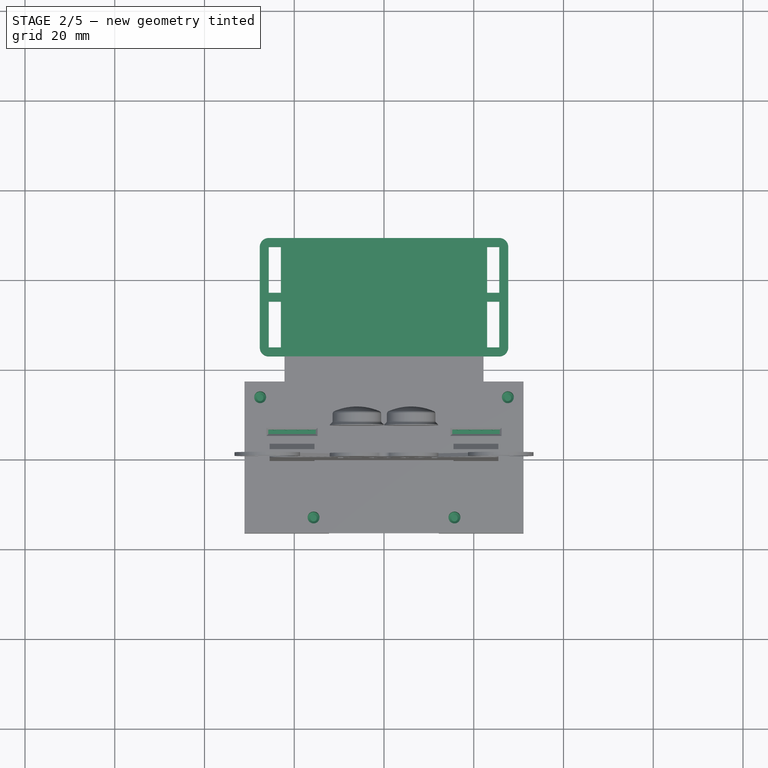
[diagram: stage 2 of 5 — top view after this stage's code; geometry added in this stage tinted green]
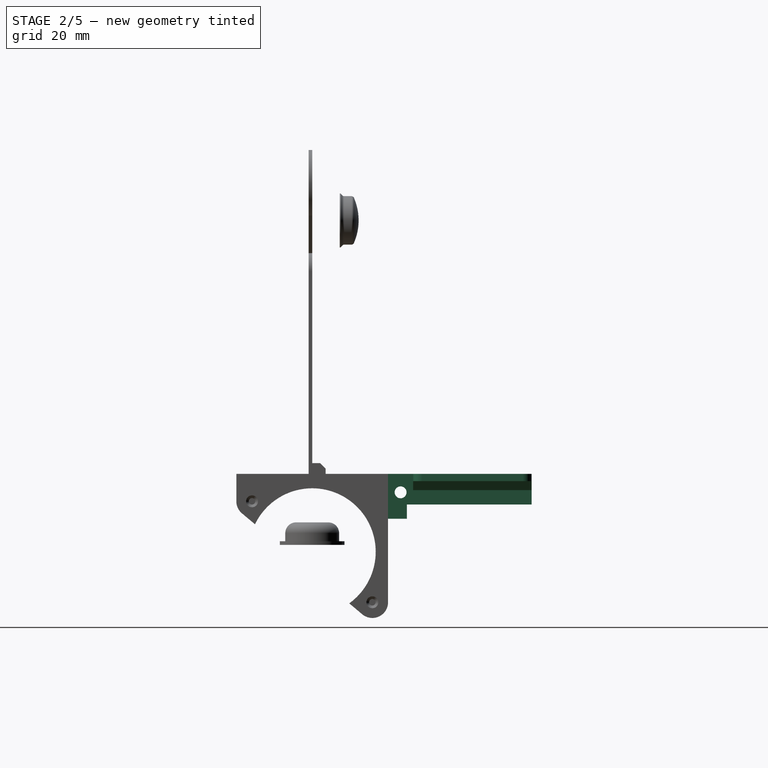
[diagram: stage 2 of 5 — right view after this stage's code; geometry added in this stage tinted green]
FEATURE [PartDesign::Mirrored] Mirrored007  label="Mirrored-motor-screw-holes"
  BaseFeature = -> Pocket005
  MirrorPlane = -> YZ_Plane014
  Originals = -> [Pocket005]
  Placement = pos=(0,0,0) rot=(1,0,0;1.5708rad)
FEATURE [Sketcher::SketchObject] Sketch013  label="Sketch-driver-support-base"
  ExternalGeometry = -> [Mirrored007]
  FullyConstrained = true
  MapMode = 5
  Placement = pos=(0,16.9,3.7e-15) rot=(-1,0,0;1.5708rad)
  Support = -> [Mirrored007]
  sketch-geometry (16):
    g0: LineSegment StartX=-12.3867 StartY=-4 StartZ=0 EndX=-12.2 EndY=-12.4 EndZ=0
    g1: LineSegment StartX=-12.2 StartY=-12.4 StartZ=0 EndX=12.2 EndY=-12.4 EndZ=0
    g2: LineSegment StartX=12.2 StartY=-12.4 StartZ=0 EndX=12.3867 EndY=-4 EndZ=0
    g3: LineSegment StartX=12.3867 StartY=-4 StartZ=0 EndX=14.3867 EndY=-4 EndZ=0
    g4: LineSegment StartX=14.3867 StartY=-4 StartZ=0 EndX=14.3867 EndY=-12.4 EndZ=0
    g5: LineSegment StartX=14.3867 StartY=-12.4 StartZ=0 EndX=16.1867 EndY=-12.4 EndZ=0
    g6: LineSegment StartX=16.1867 StartY=-12.4 StartZ=0 EndX=16.1867 EndY=-4 EndZ=0
    g7: LineSegment StartX=16.1867 StartY=-4 StartZ=0 EndX=18.1867 EndY=-4 EndZ=0
    g8: LineSegment StartX=18.1867 StartY=-4 StartZ=0 EndX=18.1867 EndY=-14 EndZ=0
    g9: LineSegment StartX=18.1867 StartY=-14 StartZ=0 EndX=-18.1867 EndY=-14 EndZ=0
    g10: LineSegment StartX=-18.1867 StartY=-14 StartZ=0 EndX=-18.1867 EndY=-4 EndZ=0
    g11: LineSegment StartX=-18.1867 StartY=-4 StartZ=0 EndX=-16.1867 EndY=-4 EndZ=0
    g12: LineSegment StartX=-16.1867 StartY=-4 StartZ=0 EndX=-16.1867 EndY=-12.4 EndZ=0
    g13: LineSegment StartX=-16.1867 StartY=-12.4 StartZ=0 EndX=-14.3867 EndY=-12.4 EndZ=0
    g14: LineSegment StartX=-14.3867 StartY=-12.4 StartZ=0 EndX=-14.3867 EndY=-4 EndZ=0
    g15: LineSegment StartX=-14.3867 StartY=-4 StartZ=0 EndX=-12.3867 EndY=-4 EndZ=0
  constraints (45):
    c: Coincident(g0,g1)
    c: Coincident(g1,g2)
    c: Coincident(g2,g3)
    c: Horizontal(g3)
    c: Coincident(g3,g4)
    c: Vertical(g4)
    c: Coincident(g4,g5)
    c: Horizontal(g5)
    c: Coincident(g5,g6)
    c: Vertical(g6)
    c: Coincident(g6,g7)
    c: Coincident(g7,g8)
    c: Vertical(g8)
    c: Coincident(g8,g9)
    c: Coincident(g9,g10)
    c: Vertical(g10)
    c: Coincident(g10,g11)
    c: Horizontal(g11)
    c: Coincident(g11,g12)
    c: Vertical(g12)
    c: Coincident(g12,g13)
    c: Horizontal(g13)
    c: Coincident(g13,g14)
    c: Vertical(g14)
    c: Coincident(g14,g15)
    c: Coincident(g15,g0)
    c: Horizontal(g15)
    c: DistanceY(g0,g0) = 8.4
    c: DistanceX(g15,g15) = 2
    c: DistanceX(g11,g14) = 1.8
    c: DistanceX(g11,g11) = 2
    c: Horizontal(g0,g13)
    c: Horizontal(g4,g1)
    c: Horizontal(g7)
    c: Horizontal(g3,g6)
    c: Horizontal(g11,g14)
    c: Symmetric(g0,g2,g-2)
    c: Equal(g3,g15)
    c: Equal(g5,g13)
    c: Equal(g7,g11)
    c: Symmetric(g1,g0,g-2)
    c: Coincident(g0,g-3)
    c: PointOnObject(g0,g-3)
    c: Horizontal(g9)
    c: DistanceY(g9,g12) = 1.6
FEATURE [PartDesign::Pad] Pad016  label="Pad-drivers-support-base"
  BaseFeature = -> Mirrored007
  Direction = (0,1,2e-16)
  Length = 4.2
  Length2 = 10
  Placement = pos=(0,0,0) rot=(1,0,0;1.5708rad)
  Profile = -> Sketch013
  ReferenceAxis = -> Sketch013 [N_Axis]
  Type = 0
FEATURE [Sketcher::SketchObject] Sketch014  label="Sketch-driver-support-arms"
  ExternalGeometry = -> [Pad016]
  FullyConstrained = true
  MapMode = 5
  Placement = pos=(0,21.1,8e-15) rot=(-1,0,0;1.5708rad)
  Support = -> [Pad016]
  sketch-geometry (16):
    g0: LineSegment StartX=-18.1867 StartY=-14 StartZ=0 EndX=-18.1867 EndY=-7.2 EndZ=0
    g1: LineSegment StartX=-18.1867 StartY=-7.2 StartZ=0 EndX=-16.1867 EndY=-7.2 EndZ=0
    g2: LineSegment StartX=-16.1867 StartY=-7.2 StartZ=0 EndX=-16.1867 EndY=-12.4 EndZ=0
    g3: LineSegment StartX=-16.1867 StartY=-12.4 StartZ=0 EndX=-14.3867 EndY=-12.4 EndZ=0
    g4: LineSegment StartX=-14.3867 StartY=-12.4 StartZ=0 EndX=-14.3867 EndY=-7.2 EndZ=0
    g5: LineSegment StartX=-14.3867 StartY=-7.2 StartZ=0 EndX=-12.3156 EndY=-7.2 EndZ=0
    g6: LineSegment StartX=-12.3156 StartY=-7.2 StartZ=0 EndX=-12.2 EndY=-12.4 EndZ=0
    g7: LineSegment StartX=-12.2 StartY=-12.4 StartZ=0 EndX=12.2 EndY=-12.4 EndZ=0
    g8: LineSegment StartX=12.2 StartY=-12.4 StartZ=0 EndX=12.3156 EndY=-7.2 EndZ=0
    g9: LineSegment StartX=12.3156 StartY=-7.2 StartZ=0 EndX=14.3867 EndY=-7.2 EndZ=0
    g10: LineSegment StartX=14.3867 StartY=-7.2 StartZ=0 EndX=14.3867 EndY=-12.4 EndZ=0
    g11: LineSegment StartX=14.3867 StartY=-12.4 StartZ=0 EndX=16.1867 EndY=-12.4 EndZ=0
    g12: LineSegment StartX=16.1867 StartY=-12.4 StartZ=0 EndX=16.1867 EndY=-7.2 EndZ=0
    g13: LineSegment StartX=16.1867 StartY=-7.2 StartZ=0 EndX=18.1867 EndY=-7.2 EndZ=0
    g14: LineSegment StartX=18.1867 StartY=-7.2 StartZ=0 EndX=18.1867 EndY=-14 EndZ=0
    g15: LineSegment StartX=18.1867 StartY=-14 StartZ=0 EndX=-18.1867 EndY=-14 EndZ=0
  constraints (44):
    c: Coincident(g0,g1)
    c: Horizontal(g1)
    c: Coincident(g1,g2)
    c: Vertical(g2)
    c: Coincident(g2,g3)
    c: Coincident(g3,g4)
    c: Vertical(g4)
    c: Coincident(g4,g5)
    c: Horizontal(g5)
    c: Coincident(g5,g6)
    c: Coincident(g6,g7)
    c: Coincident(g7,g8)
    c: Coincident(g8,g9)
    c: Horizontal(g9)
    c: Coincident(g9,g10)
    c: Vertical(g10)
    c: Coincident(g10,g11)
    c: Coincident(g11,g12)
    c: Vertical(g12)
    c: Coincident(g12,g13)
    c: Horizontal(g13)
    c: Coincident(g13,g14)
    c: Vertical(g14)
    c: Coincident(g14,g15)
    c: Coincident(g15,g0)
    c: Horizontal(g12,g9)
    c: Horizontal(g8,g5)
    c: Horizontal(g4,g1)
    c: DistanceY(g0,g0) = 6.8
    c: Horizontal(g6,g3)
    c: Horizontal(g3)
    c: Vertical(g0)
    c: DistanceX(g1,g1) = 2
    c: DistanceX(g3,g3) = 1.8
    c: Symmetric(g14,g0,g-2)
    c: Equal(g13,g1)
    c: Equal(g3,g11)
    c: Horizontal(g10,g7)
    c: Horizontal(g11)
    c: Coincident(g6,g-3)
    c: PointOnObject(g5,g-3)
    c: Coincident(g0,g-4)
    c: Coincident(g7,g-5)
    c: PointOnObject(g8,g-5)
FEATURE [PartDesign::Pad] Pad017  label="Pad-driver-support-arms"
  BaseFeature = -> Pad016
  Direction = (0,1,2e-16)
  Length = 27.8
  Length2 = 10
  Placement = pos=(0,0,0) rot=(1,0,0;1.5708rad)
  Profile = -> Sketch014
  ReferenceAxis = -> Sketch014 [N_Axis]
  Type = 0
FEATURE [Sketcher::SketchObject] Sketch019  label="Sketch-driver-screw-support"
  ExternalGeometry = -> [Pad017]
  FullyConstrained = true
  MapMode = 5
  Placement = pos=(18.1867,0,0) rot=(0.707107,0,0.707107;3.14159rad)
  Support = -> [Pad017]
  sketch-geometry (6):
    g0: Circle CenterX=9.9 CenterY=-19.7 CenterZ=0 NormalX=0 NormalY=0 NormalZ=1 AngleXU=0 Radius=2.8
    g1: LineSegment StartX=14 StartY=-16.9 StartZ=0 EndX=7.1 EndY=-16.9 EndZ=0
    g2: LineSegment StartX=7.1 StartY=-16.9 StartZ=0 EndX=7.1 EndY=-19.7 EndZ=0
    g3: ArcOfCircle CenterX=9.9 CenterY=-19.7 CenterZ=0 NormalX=0 NormalY=0 NormalZ=1 AngleXU=0 Radius=2.8 StartAngle=3.14159 EndAngle=4.71239
    g4: LineSegment StartX=9.9 StartY=-22.5 StartZ=0 EndX=14 EndY=-22.5 EndZ=0
    g5: LineSegment StartX=14 StartY=-22.5 StartZ=0 EndX=14 EndY=-16.9 EndZ=0
  constraints (15):
    c: Radius(g0) = 2.8
    c: Horizontal(g1)
    c: Tangent(g1,g0)
    c: Coincident(g1,g2)
    c: Vertical(g2)
    c: Tangent(g2,g3) = -1.5708
    c: Tangent(g3,g4) = -1.5708
    c: Coincident(g4,g5)
    c: Coincident(g5,g1)
    c: Vertical(g5)
    c: Horizontal(g4)
    c: Coincident(g0,g3)
    c: PointOnObject(g3,g0)
    c: DistanceX(g4,g4) = 4.1
    c: Coincident(g1,g-3)
FEATURE [PartDesign::Pad] Pad018  label="Pad-driver-screw-support"
  BaseFeature = -> Pad017
  Direction = (1,0,-2e-16)
  Length = 4
  Length2 = 10
  Placement = pos=(0,0,0) rot=(1,0,0;1.5708rad)
  Profile = -> Sketch019
  ReferenceAxis = -> Sketch019 [N_Axis]
  Type = 0
FEATURE [PartDesign::Mirrored] Mirrored008  label="Mirrored-driver-screw-support"
  BaseFeature = -> Pad018
  MirrorPlane = -> YZ_Plane014
  Originals = -> [Pad018]
  Placement = pos=(0,0,0) rot=(1,0,0;1.5708rad)
FEATURE [Sketcher::SketchObject] Sketch020  label="Sketch-driver-screw-holes"
  ExternalGeometry = -> [Mirrored008]
  FullyConstrained = true
  MapMode = 5
  Placement = pos=(0,0,0) rot=(0.57735,0.57735,0.57735;2.0944rad)
  Support = -> [YZ_Plane014]
  expr: Constraints[6] = <<Config>>.sh_diameter
  sketch-geometry (3):
    g0: Circle CenterX=19.7 CenterY=9.9 CenterZ=0 NormalX=0 NormalY=0 NormalZ=1 AngleXU=0 Radius=1.325
    g1: Circle CenterX=46.1 CenterY=9.9 CenterZ=0 NormalX=0 NormalY=0 NormalZ=1 AngleXU=0 Radius=1.325
    g2: LineSegment StartX=19.7 StartY=9.9 StartZ=0 EndX=46.1 EndY=9.9 EndZ=0
  constraints (7):
    c: Equal(g0,g1)
    c: Coincident(g2,g0)
    c: Coincident(g2,g1)
    c: Horizontal(g2)
    c: DistanceX(g2,g2) = 26.4
    c: Coincident(g0,g-3)
    c: Diameter(g0) = 2.65
FEATURE [PartDesign::Pocket] Pocket006  label="Pocket-driver-screw-holes"
  BaseFeature = -> Mirrored008
  Direction = (-1,2e-16,-3e-16)
  Length = 5
  Length2 = 5
  Midplane = true
  Placement = pos=(0,0,0) rot=(1,0,0;1.5708rad)
  Profile = -> Sketch020
  ReferenceAxis = -> Sketch020 [N_Axis]
  Refine = true
  Type = 1
FEATURE [Sketcher::SketchObject] Sketch023  label="Sketch-top-screw-holes"
  ExternalGeometry = -> [Pocket006]
  FullyConstrained = true
  MapMode = 5
  Placement = pos=(0,7e-16,14) rot=(0,0,1;3.14159rad)
  Support = -> [Pocket006]
  expr: Constraints[9] = <<Config>>.sh_diameter
  sketch-geometry (4):
    g0: Circle CenterX=-27.6 CenterY=-13.4 CenterZ=0 NormalX=0 NormalY=0 NormalZ=1 AngleXU=0 Radius=1.325
    g1: Circle CenterX=27.6 CenterY=-13.4 CenterZ=0 NormalX=0 NormalY=0 NormalZ=1 AngleXU=0 Radius=1.325
    g2: Circle CenterX=-15.7 CenterY=13.4 CenterZ=0 NormalX=0 NormalY=0 NormalZ=1 AngleXU=0 Radius=1.325
    g3: Circle CenterX=15.7 CenterY=13.4 CenterZ=0 NormalX=0 NormalY=0 NormalZ=1 AngleXU=0 Radius=1.325
  constraints (10):
    c: Equal(g0,g1)
    c: Symmetric(g0,g1,g-2)
    c: Symmetric(g2,g3,g-2)
    c: Equal(g2,g3)
    c: Equal(g3,g0)
    c: DistanceX(g-3,g0) = 3.5
    c: DistanceY(g-3,g0) = 3.5
    c: DistanceX(g3,g-4) = -3.5
    c: DistanceY(g3,g-4) = 3.5
    c: Diameter(g0) = 2.65
FEATURE [PartDesign::Pocket] Pocket007  label="Pocket-top-screw-holes"
  BaseFeature = -> Pocket006
  Direction = (0,-3e-16,-1)
  Length = 8.5
  Length2 = 5
  Placement = pos=(0,0,0) rot=(1,0,0;1.5708rad)
  Profile = -> Sketch023
  ReferenceAxis = -> Sketch023 [N_Axis]
  Type = 0
FEATURE [PartDesign::Chamfer] Chamfer003  label="Chamfer-screw-holes"
  Angle = 45
  Base = -> Pocket007 [Edge135,Edge139,Edge141,Edge137,Edge56,Edge165,Edge163,Edge54]
  BaseFeature = -> Pocket007
  ChamferType = 0
  FlipDirection = false
  Placement = pos=(0,0,0) rot=(1,0,0;1.5708rad)
  Size = 0.6
  Size2 = 1
  SupportTransform = false
  UseAllEdges = false
FEATURE [Sketcher::SketchObject] Sketch025  label="Sketch-chasis-bottom-support"
  ExternalGeometry = -> [Chamfer003]
  FullyConstrained = true
  MapMode = 5
  Placement = pos=(12.7,0,0) rot=(0.707107,0,-0.707107;3.14159rad)
  Support = -> [Chamfer003]
  sketch-geometry (4):
    g0: LineSegment StartX=10.1 StartY=-16.9 StartZ=0 EndX=10.1 EndY=-12.4362 EndZ=0
    g1: LineSegment StartX=10.1 StartY=-12.4362 StartZ=0 EndX=14.7998 EndY=-12.4362 EndZ=0
    g2: LineSegment StartX=10.1 StartY=-16.9 StartZ=0 EndX=14.7998 EndY=-16.9 EndZ=0
    g3: LineSegment StartX=14.7998 StartY=-12.4362 StartZ=0 EndX=14.7998 EndY=-16.9 EndZ=0
  constraints (10):
    c: Coincident(g0,g1)
    c: Horizontal(g1)
    c: Coincident(g2,g0)
    c: Vertical(g0)
    c: Horizontal(g2)
    c: Coincident(g0,g-4)
    c: Coincident(g3,g1)
    c: Coincident(g3,g2)
    c: Vertical(g3)
    c: Coincident(g2,g-3)
FEATURE [PartDesign::Pad] Pad019  label="Pad-chasis-bottom-support"
  BaseFeature = -> Chamfer003
  Direction = (-1,0,-2e-16)
  Length = 25.6
  Length2 = 10
  Placement = pos=(0,0,0) rot=(1,0,0;1.5708rad)
  Profile = -> Sketch025
  ReferenceAxis = -> Sketch025 [N_Axis]
  Refine = true
  Type = 0
FEATURE [Sketcher::SketchObject] Sketch026  label="Sketch-wire-traps"
  ExternalGeometry = -> [Pad019]
  FullyConstrained = true
  MapMode = 5
  Placement = pos=(0,7e-16,14) rot=(0,0,1;3.14159rad)
  Support = -> [Pad019]
  sketch-geometry (28):
    g0: LineSegment StartX=18.1867 StartY=-48.9 StartZ=0 EndX=25.6867 EndY=-48.9 EndZ=0
    g1: LineSegment StartX=27.6867 StartY=-46.9 StartZ=0 EndX=27.6867 EndY=-24.5 EndZ=0
    g2: LineSegment StartX=25.6867 StartY=-22.5 StartZ=0 EndX=18.1867 EndY=-22.5 EndZ=0
    g3: LineSegment StartX=18.1867 StartY=-22.5 StartZ=0 EndX=18.1867 EndY=-48.9 EndZ=0
    g4: LineSegment StartX=22.9867 StartY=-36.7 StartZ=0 EndX=25.6867 EndY=-36.7 EndZ=0
    g5: LineSegment StartX=25.6867 StartY=-36.7 StartZ=0 EndX=25.6867 EndY=-46.9 EndZ=0
    g6: LineSegment StartX=25.6867 StartY=-46.9 StartZ=0 EndX=22.9867 EndY=-46.9 EndZ=0
    g7: LineSegment StartX=22.9867 StartY=-46.9 StartZ=0 EndX=22.9867 EndY=-36.7 EndZ=0
    g8: ArcOfCircle CenterX=25.6867 CenterY=-24.5 CenterZ=0 NormalX=0 NormalY=0 NormalZ=1 AngleXU=0 Radius=2 StartAngle=0 EndAngle=1.5708
    g9: ArcOfCircle CenterX=25.6867 CenterY=-46.9 CenterZ=0 NormalX=0 NormalY=0 NormalZ=1 AngleXU=0 Radius=2 StartAngle=4.71239 EndAngle=6.28319
    g10: LineSegment StartX=22.9867 StartY=-24.5 StartZ=0 EndX=25.6867 EndY=-24.5 EndZ=0
    g11: LineSegment StartX=25.6867 StartY=-24.5 StartZ=0 EndX=25.6867 EndY=-34.7 EndZ=0
    g12: LineSegment StartX=25.6867 StartY=-34.7 StartZ=0 EndX=22.9867 EndY=-34.7 EndZ=0
    g13: LineSegment StartX=22.9867 StartY=-34.7 StartZ=0 EndX=22.9867 EndY=-24.5 EndZ=0
    g14: LineSegment StartX=-18.1867 StartY=-48.9 StartZ=0 EndX=-25.6867 EndY=-48.9 EndZ=0
    g15: LineSegment StartX=-27.6867 StartY=-46.9 StartZ=0 EndX=-27.6867 EndY=-24.5 EndZ=0
    g16: LineSegment StartX=-18.1867 StartY=-22.5 StartZ=0 EndX=-18.1867 EndY=-48.9 EndZ=0
    g17: LineSegment StartX=-22.9867 StartY=-36.7 StartZ=0 EndX=-25.6867 EndY=-36.7 EndZ=0
    g18: LineSegment StartX=-25.6867 StartY=-36.7 StartZ=0 EndX=-25.6867 EndY=-46.9 EndZ=0
    g19: LineSegment StartX=-25.6867 StartY=-46.9 StartZ=0 EndX=-22.9867 EndY=-46.9 EndZ=0
    g20: LineSegment StartX=-22.9867 StartY=-46.9 StartZ=0 EndX=-22.9867 EndY=-36.7 EndZ=0
    g21: ArcOfCircle CenterX=-25.6867 CenterY=-24.5 CenterZ=0 NormalX=0 NormalY=0 NormalZ=1 AngleXU=0 Radius=2 StartAngle=1.5708 EndAngle=3.14159
    g22: ArcOfCircle CenterX=-25.6867 CenterY=-46.9 CenterZ=0 NormalX=0 NormalY=0 NormalZ=1 AngleXU=0 Radius=2 StartAngle=3.14159 EndAngle=4.71239
    g23: LineSegment StartX=-22.9867 StartY=-24.5 StartZ=0 EndX=-25.6867 EndY=-24.5 EndZ=0
    g24: LineSegment StartX=-25.6867 StartY=-24.5 StartZ=0 EndX=-25.6867 EndY=-34.7 EndZ=0
    g25: LineSegment StartX=-25.6867 StartY=-34.7 StartZ=0 EndX=-22.9867 EndY=-34.7 EndZ=0
    g26: LineSegment StartX=-22.9867 StartY=-34.7 StartZ=0 EndX=-22.9867 EndY=-24.5 EndZ=0
    g27: LineSegment StartX=-25.6867 StartY=-22.5 StartZ=0 EndX=-18.1867 EndY=-22.5 EndZ=0
  constraints (74):
    c: Coincident(g2,g3)
    c: Coincident(g3,g0)
    c: Horizontal(g0)
    c: Horizontal(g2)
    c: Vertical(g1)
    c: Vertical(g3)
    c: Coincident(g5,g6)
    c: Coincident(g6,g7)
    c: Coincident(g7,g4)
    c: Horizontal(g4)
    c: Horizontal(g6)
    c: Vertical(g5)
    c: Vertical(g7)
    c: DistanceY(g5,g5) = 10.2
    c: DistanceX(g4,g4) = 2.7
    c: DistanceX(g0,g6) = 4.8
    c: Tangent(g2,g8) = -1.5708
    c: Tangent(g1,g8) = -1.5708
    c: Tangent(g0,g9) = -1.5708
    c: Tangent(g1,g9) = -1.5708
    c: Coincident(g5,g9)
    c: Radius(g9) = 2
    c: Coincident(g4,g5)
    c: Coincident(g10,g11)
    c: Coincident(g11,g12)
    c: Coincident(g12,g13)
    c: Coincident(g13,g10)
    c: Horizontal(g10)
    c: Horizontal(g12)
    c: Vertical(g11)
    c: Vertical(g13)
    c: Vertical(g12,g4)
    c: Equal(g12,g4)
    c: Equal(g11,g5)
    c: DistanceY(g4,g11) = 2
    c: Coincident(g8,g10)
    c: Coincident(g2,g-3)
    c: Coincident(g27,g16)
    c: Coincident(g16,g14)
    c: Horizontal(g14)
    c: Horizontal(g27)
    c: Vertical(g15)
    c: Vertical(g16)
    c: Coincident(g18,g19)
    c: Coincident(g19,g20)
    c: Coincident(g20,g17)
    c: Horizontal(g17)
    c: Horizontal(g19)
    c: Vertical(g18)
    c: Vertical(g20)
    c: Tangent(g27,g21) = 1.5708
    c: Tangent(g15,g21) = 1.5708
    c: Tangent(g14,g22) = 1.5708
    c: Tangent(g15,g22) = 1.5708
    c: Coincident(g18,g22)
    c: Coincident(g17,g18)
    c: Coincident(g23,g24)
    c: Coincident(g24,g25)
    c: Coincident(g25,g26)
    c: Coincident(g26,g23)
    c: Horizontal(g23)
    c: Horizontal(g25)
    c: Vertical(g24)
    c: Vertical(g26)
    c: Equal(g25,g17)
    c: Equal(g24,g18)
    c: Coincident(g21,g23)
    c: Vertical(g25,g17)
    c: Equal(g5,g18)
    c: DistanceY(g17,g24) = 2
    c: Equal(g4,g17)
    c: Symmetric(g16,g2,g-2)
    c: Equal(g22,g9)
    c: Equal(g14,g0)
FEATURE [PartDesign::Pad] Pad020  label="Pad-wire-traps"
  BaseFeature = -> Pad019
  Direction = (0,5e-16,1)
  Length = 1.6
  Length2 = 10
  Placement = pos=(0,0,0) rot=(1,0,0;1.5708rad)
  Profile = -> Sketch026
  ReferenceAxis = -> Sketch026 [N_Axis]
  Refine = true
  Reversed = true
  Type = 0
FEATURE [PartDesign::Chamfer] Chamfer  label="Chamfer-wire-traps"
  Angle = 45
  Base = -> Pad020 [Edge129,Edge72]
  BaseFeature = -> Pad020
  ChamferType = 0
  FlipDirection = false
  Placement = pos=(0,0,0) rot=(1,0,0;1.5708rad)
  Size = 2
  Size2 = 1
  SupportTransform = false
  UseAllEdges = false
FEATURE [Sketcher::SketchObject] Sketch045  label="Sketch-escornaface-slots"
  AttachmentOffset = pos=(0,0,14) rot=(0,0,1;0rad)
  FullyConstrained = true
  MapMode = 5
  Placement = pos=(0,0,14) rot=(0,0,1;0rad)
  Support = -> [XY_Plane014]
  sketch-geometry (8):
    g0: LineSegment StartX=-25.8 StartY=6.2 StartZ=0 EndX=-15.2 EndY=6.2 EndZ=0
    g1: LineSegment StartX=-15.2 StartY=6.2 StartZ=0 EndX=-15.2 EndY=5.2 EndZ=0
    g2: LineSegment StartX=-15.2 StartY=5.2 StartZ=0 EndX=-25.8 EndY=5.2 EndZ=0
    g3: LineSegment StartX=-25.8 StartY=5.2 StartZ=0 EndX=-25.8 EndY=6.2 EndZ=0
    g4: LineSegment StartX=15.2 StartY=6.2 StartZ=0 EndX=25.8 EndY=6.2 EndZ=0
    g5: LineSegment StartX=25.8 StartY=6.2 StartZ=0 EndX=25.8 EndY=5.2 EndZ=0
    g6: LineSegment StartX=25.8 StartY=5.2 StartZ=0 EndX=15.2 EndY=5.2 EndZ=0
    g7: LineSegment StartX=15.2 StartY=5.2 StartZ=0 EndX=15.2 EndY=6.2 EndZ=0
  constraints (23):
    c: Coincident(g0,g1)
    c: Coincident(g1,g2)
    c: Coincident(g2,g3)
    c: Coincident(g3,g0)
    c: Horizontal(g0)
    c: Horizontal(g2)
    c: Vertical(g1)
    c: Vertical(g3)
    c: Coincident(g4,g5)
    c: Coincident(g5,g6)
    c: Coincident(g6,g7)
    c: Coincident(g7,g4)
    c: Horizontal(g4)
    c: Horizontal(g6)
    c: Vertical(g5)
    c: Vertical(g7)
    c: DistanceY(g3,g3) = 1
    c: DistanceX(g0,g0) = 10.6
    c: Symmetric(g0,g4,g-2)
    c: Equal(g1,g7)
    c: Equal(g0,g4)
    c: DistanceX(g0) = -15.2
    c: DistanceY(g1) = 5.2
FEATURE [PartDesign::Pocket] Pocket012  label="Pocket-escornaface-slots"
  BaseFeature = -> Chamfer
  Direction = (0,0,-1)
  Length = 3
  Length2 = 5
  Placement = pos=(0,0,0) rot=(1,0,0;1.5708rad)
  Profile = -> Sketch045
  ReferenceAxis = -> Sketch045 [N_Axis]
  Type = 0
FEATURE [Part::Feature] Body003004002007001009001  label="keypad-ballcaster-support"
  Placement = pos=(0,77,3) rot=(0,0.707107,-0.707107;3.14159rad)
  shape: bbox 44.1 x 33.7 x 6 mm, 45 faces (baked)
FEATURE [Part::Feature] Body003004002007001010001  label="keypad-chasis-support"
  Placement = pos=(0,111.4,-0.1) rot=(0,0,1;0rad)
  shape: bbox 45.1 x 36.05 x 9.6 mm, 28 faces (baked)
FEATURE [Part::Feature] Body003004002007001011004  label="ball-caster"
  Placement = pos=(0,123.8,-3e-15) rot=(1,0,0;3.14159rad)
  shape: bbox 37.4 x 19 x 21.4 mm, 33 faces (baked)
FEATURE [Part::Feature] Body003004002007001011002001  label="switch-holder"
  Placement = pos=(40.6,33.1,-2e-15) rot=(0.57735,-0.57735,-0.57735;2.0944rad)
  shape: bbox 9.1 x 35.6 x 7.2 mm, 49 faces (baked)
FEATURE [PartDesign::Chamfer] Chamfer006  label="Chamfer-escornaface-slots"
  Angle = 45
  Base = -> Pocket012 [Edge108,Edge109,Edge110,Edge111,Edge122,Edge121,Edge123,Edge124]
  BaseFeature = -> Pocket012
  ChamferType = 0
  FlipDirection = false
  Placement = pos=(0,0,0) rot=(1,0,0;1.5708rad)
  Size = 0.4
  Size2 = 1
  SupportTransform = false
  UseAllEdges = false
FEATURE [Sketcher::SketchObject] Sketch004  label="Sketch-slot-rails"
  AttachmentOffset = pos=(0,0,11) rot=(0,0,1;0rad)
  ExternalGeometry = -> [Chamfer006]
  FullyConstrained = true
  MapMode = 5
  Placement = pos=(0,0,11) rot=(0,0,1;0rad)
  Support = -> [XY_Plane014]
  sketch-geometry (22):
    g0: ArcOfCircle CenterX=-16.6 CenterY=6.6 CenterZ=0 NormalX=0 NormalY=0 NormalZ=1 AngleXU=0 Radius=0.55 StartAngle=3.14159 EndAngle=6.28319
    g1: LineSegment StartX=-16.05 StartY=6.6 StartZ=0 EndX=-17.15 EndY=6.6 EndZ=0
    g2: ArcOfCircle CenterX=-19.2 CenterY=6.6 CenterZ=0 NormalX=0 NormalY=0 NormalZ=1 AngleXU=0 Radius=0.55 StartAngle=3.14159 EndAngle=6.28319
    g3: LineSegment StartX=-18.65 StartY=6.6 StartZ=0 EndX=-19.75 EndY=6.6 EndZ=0
    g4: LineSegment StartX=-17.15 StartY=6.6 StartZ=0 EndX=-19.75 EndY=6.6 EndZ=0
    g5: ArcOfCircle CenterX=-21.8 CenterY=6.6 CenterZ=0 NormalX=0 NormalY=0 NormalZ=1 AngleXU=0 Radius=0.55 StartAngle=3.14159 EndAngle=6.28319
    g6: LineSegment StartX=-21.25 StartY=6.6 StartZ=0 EndX=-22.35 EndY=6.6 EndZ=0
    g7: LineSegment StartX=-19.75 StartY=6.6 StartZ=0 EndX=-22.35 EndY=6.6 EndZ=0
    g8: ArcOfCircle CenterX=-24.4 CenterY=6.6 CenterZ=0 NormalX=0 NormalY=0 NormalZ=1 AngleXU=0 Radius=0.55 StartAngle=3.14159 EndAngle=6.28319
    g9: LineSegment StartX=-23.85 StartY=6.6 StartZ=0 EndX=-24.95 EndY=6.6 EndZ=0
    g10: LineSegment StartX=-22.35 StartY=6.6 StartZ=0 EndX=-24.95 EndY=6.6 EndZ=0
    g11: ArcOfCircle CenterX=16.6 CenterY=6.6 CenterZ=0 NormalX=0 NormalY=0 NormalZ=1 AngleXU=0 Radius=0.55 StartAngle=3.14159 EndAngle=6.28319
    g12: LineSegment StartX=16.05 StartY=6.6 StartZ=0 EndX=17.15 EndY=6.6 EndZ=0
    g13: ArcOfCircle CenterX=19.2 CenterY=6.6 CenterZ=0 NormalX=0 NormalY=0 NormalZ=1 AngleXU=0 Radius=0.55 StartAngle=3.14159 EndAngle=6.28319
    g14: LineSegment StartX=18.65 StartY=6.6 StartZ=0 EndX=19.75 EndY=6.6 EndZ=0
    g15: LineSegment StartX=17.15 StartY=6.6 StartZ=0 EndX=19.75 EndY=6.6 EndZ=0
    g16: ArcOfCircle CenterX=21.8 CenterY=6.6 CenterZ=0 NormalX=0 NormalY=0 NormalZ=1 AngleXU=0 Radius=0.55 StartAngle=3.14159 EndAngle=6.28319
    g17: LineSegment StartX=21.25 StartY=6.6 StartZ=0 EndX=22.35 EndY=6.6 EndZ=0
    g18: LineSegment StartX=19.75 StartY=6.6 StartZ=0 EndX=22.35 EndY=6.6 EndZ=0
    g19: ArcOfCircle CenterX=24.4 CenterY=6.6 CenterZ=0 NormalX=0 NormalY=0 NormalZ=1 AngleXU=0 Radius=0.55 StartAngle=3.14159 EndAngle=6.28319
    g20: LineSegment StartX=23.85 StartY=6.6 StartZ=0 EndX=24.95 EndY=6.6 EndZ=0
    g21: LineSegment StartX=22.35 StartY=6.6 StartZ=0 EndX=24.95 EndY=6.6 EndZ=0
  constraints (67):
    c: Coincident(g1,g0)
    c: Coincident(g1,g0)
    c: Radius(g0) = 0.55
    c: Coincident(g3,g2)
    c: Coincident(g3,g2)
    c: Equal(g0,g2) = 0.35
    c: Coincident(g0,g4)
    c: Coincident(g2,g4)
    c: Distance(g4) = 2.6
    c: Coincident(g6,g5)
    c: Coincident(g6,g5)
    c: Equal(g0,g5) = 0.35
    c: Coincident(g2,g7)
    c: Coincident(g5,g7)
    c: Equal(g4,g7)
    c: Parallel(g7,g4)
    c: Coincident(g9,g8)
    c: Coincident(g9,g8)
    c: Equal(g0,g8) = 0.35
    c: Coincident(g5,g10)
    c: Coincident(g8,g10)
    c: Equal(g4,g10)
    c: PointOnObject(g2,g4)
    c: PointOnObject(g5,g10)
    c: PointOnObject(g8,g10)
    c: PointOnObject(g8,g10)
    c: PointOnObject(g0,g1)
    c: PointOnObject(g5,g7)
    c: PointOnObject(g0,g4)
    c: PointOnObject(g2,g4)
    c: PointOnObject(g5,g6)
    c: Horizontal(g10)
    c: PointOnObject(g8,g-3)
    c: DistanceX(g-3,g8) = 1.25
    c: Coincident(g12,g11)
    c: Coincident(g12,g11)
    c: Radius(g11) = 0.55
    c: Coincident(g14,g13)
    c: Coincident(g14,g13)
    c: Equal(g11,g13) = 0.35
    c: Coincident(g11,g15)
    c: Coincident(g13,g15)
    c: Distance(g15) = 2.6
    c: Coincident(g17,g16)
    c: Coincident(g17,g16)
    c: Equal(g11,g16) = 0.35
    c: Coincident(g13,g18)
    c: Coincident(g16,g18)
    c: Equal(g15,g18)
    c: Parallel(g18,g15)
    c: Coincident(g20,g19)
    c: Coincident(g20,g19)
    c: Equal(g11,g19) = 0.35
    c: Coincident(g16,g21)
    c: Coincident(g19,g21)
    c: Equal(g15,g21)
    c: PointOnObject(g13,g15)
    c: PointOnObject(g16,g21)
    c: PointOnObject(g19,g21)
    c: PointOnObject(g19,g21)
    c: PointOnObject(g11,g12)
    c: PointOnObject(g16,g18)
    c: PointOnObject(g11,g15)
    c: PointOnObject(g13,g15)
    c: PointOnObject(g16,g17)
    c: Horizontal(g21)
    c: Symmetric(g11,g0,g-2)
FEATURE [PartDesign::Pad] Pad033  label="Pad-slot-rails"
  BaseFeature = -> Chamfer006
  Direction = (0,0,1)
  Length = 2.6
  Length2 = 10
  Placement = pos=(0,0,0) rot=(1,0,0;1.5708rad)
  Profile = -> Sketch004
  ReferenceAxis = -> Sketch004 [N_Axis]
  Refine = true
  Type = 0
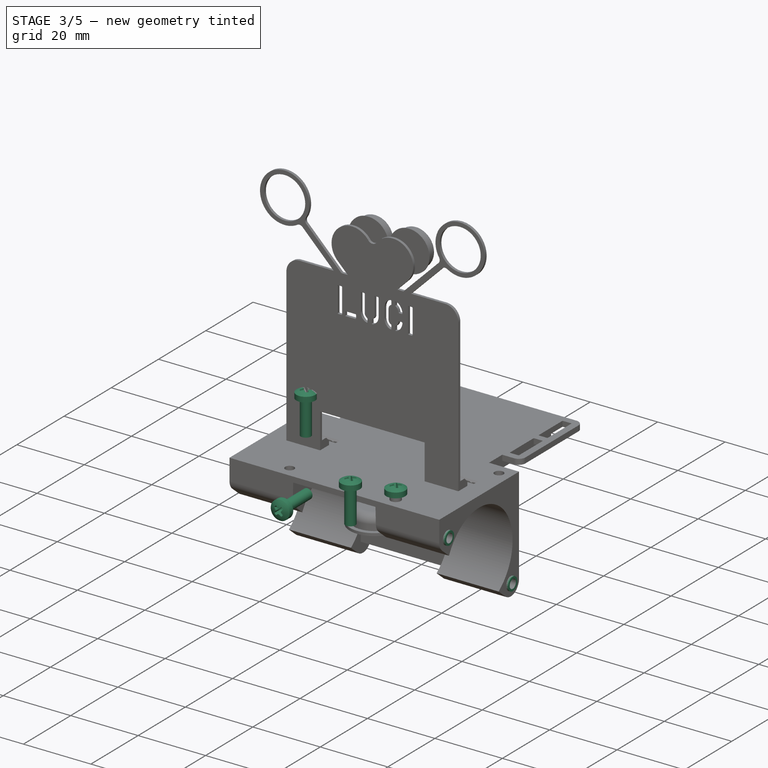
[diagram: stage 3 of 5 — iso view after this stage's code; geometry added in this stage tinted green]
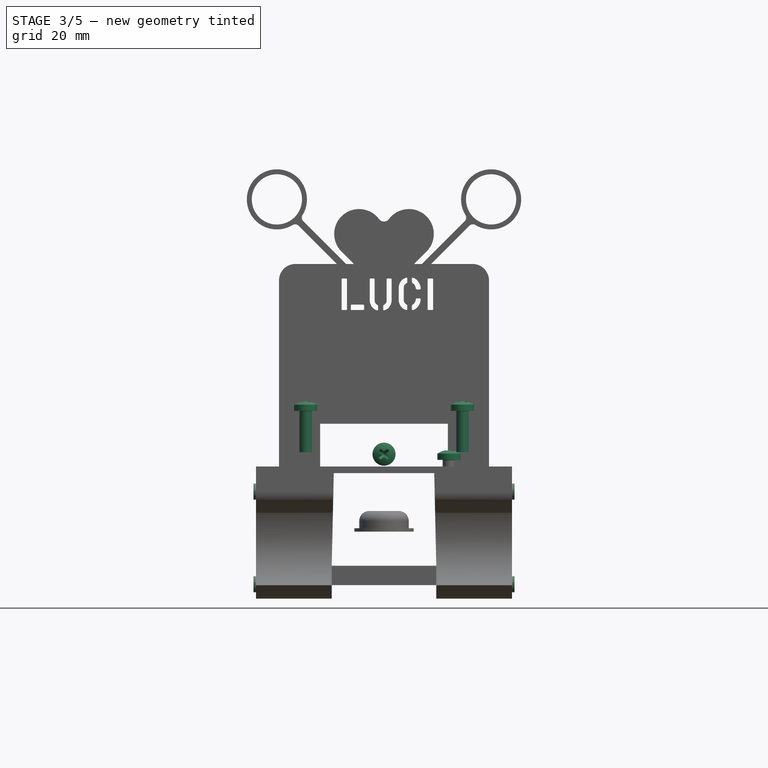
[diagram: stage 3 of 5 — front view after this stage's code; geometry added in this stage tinted green]
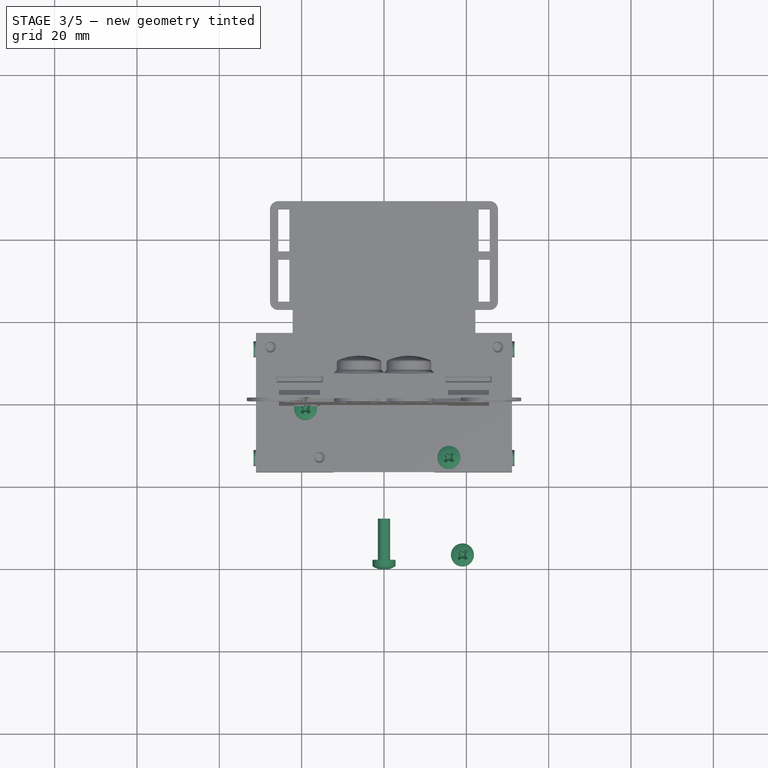
[diagram: stage 3 of 5 — top view after this stage's code; geometry added in this stage tinted green]
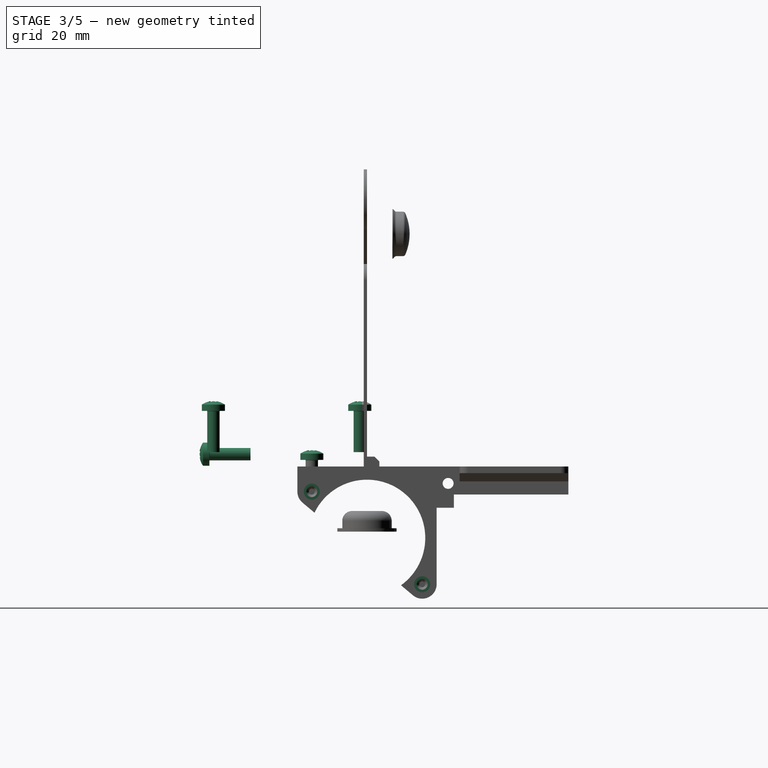
[diagram: stage 3 of 5 — right view after this stage's code; geometry added in this stage tinted green]
FEATURE [Sketcher::SketchObject] Sketch027  label="Sketch-keypad-ballcaster-support"
  FullyConstrained = true
  MapMode = 5
  Placement = pos=(0,0,0) rot=(1,0,0;1.5708rad)
  Support = -> [XZ_Plane015]
  expr: Constraints[72] = <<Config>>.sh_passing_diameter
  expr: Constraints[74] = <<Config>>.sh_diameter
  expr: Constraints[82] = <<Config>>.head_recess_diameter
  sketch-geometry (30):
    g0: LineSegment StartX=-12.7 StartY=-10.1 StartZ=0 EndX=-12.2 EndY=12.4 EndZ=0
    g1: LineSegment StartX=-12.2 StartY=12.4 StartZ=0 EndX=12.2 EndY=12.4 EndZ=0
    g2: LineSegment StartX=12.2 StartY=12.4 StartZ=0 EndX=12.7 EndY=-10.1 EndZ=0
    g3: LineSegment StartX=-22.05 StartY=23.6 StartZ=0 EndX=-16.05 EndY=23.6 EndZ=0
    g4: LineSegment StartX=-16.05 StartY=23.6 StartZ=0 EndX=-16.05 EndY=14 EndZ=0
    g5: LineSegment StartX=-16.05 StartY=14 StartZ=0 EndX=-4.6 EndY=14 EndZ=0
    g6: LineSegment StartX=16.05 StartY=14 StartZ=0 EndX=16.05 EndY=23.6 EndZ=0
    g7: LineSegment StartX=16.05 StartY=23.6 StartZ=0 EndX=22.05 EndY=23.6 EndZ=0
    g8: LineSegment StartX=22.05 StartY=23.6 StartZ=0 EndX=22.05 EndY=12.4 EndZ=0
    g9: LineSegment StartX=13.8004 StartY=12.4 StartZ=0 EndX=14.1248 EndY=-2.2 EndZ=0
    g10: LineSegment StartX=18.7 StartY=-10.1 StartZ=0 EndX=12.7 EndY=-10.1 EndZ=0
    g11: LineSegment StartX=-14.1248 StartY=-2.2 StartZ=0 EndX=-13.8004 EndY=12.4 EndZ=0
    g12: LineSegment StartX=-22.05 StartY=12.4 StartZ=0 EndX=-22.05 EndY=23.6 EndZ=0
    g13: LineSegment StartX=-13.8004 StartY=12.4 StartZ=0 EndX=-12.2008 EndY=12.3645 EndZ=0
    g14: LineSegment StartX=13.8004 StartY=12.4 StartZ=0 EndX=12.2008 EndY=12.3645 EndZ=0
    g15: LineSegment StartX=-22.05 StartY=12.4 StartZ=0 EndX=-13.8004 EndY=12.4 EndZ=0
    g16: LineSegment StartX=13.8004 StartY=12.4 StartZ=0 EndX=22.05 EndY=12.4 EndZ=0
    g17: LineSegment StartX=12.2 StartY=12.4 StartZ=0 EndX=12.2 EndY=14 EndZ=0
    g18: LineSegment StartX=14.1248 StartY=-2.2 StartZ=0 EndX=18.7 EndY=-2.2 EndZ=0
    g19: LineSegment StartX=18.7 StartY=-2.2 StartZ=0 EndX=18.7 EndY=-10.1 EndZ=0
    g20: LineSegment StartX=-14.1248 StartY=-2.2 StartZ=0 EndX=-18.7 EndY=-2.2 EndZ=0
    g21: LineSegment StartX=-18.7 StartY=-2.2 StartZ=0 EndX=-18.7 EndY=-10.1 EndZ=0
    g22: LineSegment StartX=-12.7 StartY=-10.1 StartZ=0 EndX=-18.7 EndY=-10.1 EndZ=0
    g23: LineSegment StartX=-4.6 StartY=14 StartZ=0 EndX=-4.6 EndY=17 EndZ=0
    g24: ArcOfCircle CenterX=0 CenterY=17 CenterZ=0 NormalX=0 NormalY=0 NormalZ=1 AngleXU=0 Radius=4.6 StartAngle=0 EndAngle=3.14159
    g25: LineSegment StartX=4.6 StartY=17 StartZ=0 EndX=4.6 EndY=14 EndZ=0
    g26: Circle CenterX=0 CenterY=17 CenterZ=0 NormalX=0 NormalY=0 NormalZ=1 AngleXU=0 Radius=1.7
    g27: Circle CenterX=0 CenterY=17 CenterZ=0 NormalX=0 NormalY=0 NormalZ=1 AngleXU=0 Radius=1.325
    g28: LineSegment StartX=4.6 StartY=14 StartZ=0 EndX=16.05 EndY=14 EndZ=0
    g29: Circle CenterX=0 CenterY=17 CenterZ=0 NormalX=0 NormalY=0 NormalZ=1 AngleXU=0 Radius=3
  constraints (83):
    c: Coincident(g0,g1)
    c: Coincident(g1,g2)
    c: Symmetric(g0,g1,g-2)
    c: Symmetric(g0,g2,g-2)
    c: DistanceY(g2,g2) = 22.5
    c: DistanceY(g2) = -10.1
    c: DistanceX(g0,g2) = 25.4
    c: DistanceX(g1,g1) = 24.4
    c: Horizontal(g3)
    c: Coincident(g3,g4)
    c: Vertical(g4)
    c: Coincident(g6,g7)
    c: Horizontal(g7)
    c: Coincident(g7,g8)
    c: Vertical(g8)
    c: Coincident(g14,g9) = -1.5708
    c: Coincident(g12,g3)
    c: Vertical(g12)
    c: Vertical(g6)
    c: Horizontal(g5)
    c: Parallel(g9,g2)
    c: Parallel(g11,g0)
    c: DistanceX(g7,g7) = 6
    c: Equal(g7,g3)
    c: Coincident(g13,g11)
    c: PointOnObject(g13,g0)
    c: Perpendicular(g0,g13)
    c: PointOnObject(g14,g2)
    c: Perpendicular(g2,g14)
    c: Equal(g14,g13)
    c: Symmetric(g6,g3,g-2)
    c: DistanceY(g3) = 23.6
    c: DistanceX(g6) = 16.05
    c: Coincident(g28,g6)
    c: Coincident(g4,g5)
    c: Coincident(g12,g15)
    c: Horizontal(g15)
    c: Coincident(g11,g15)
    c: Horizontal(g11,g0)
    c: Horizontal(g1,g9)
    c: Coincident(g16,g9)
    c: Coincident(g16,g8)
    c: Horizontal(g16)
    c: Coincident(g17,g1)
    c: PointOnObject(g17,g5)
    c: Vertical(g17)
    c: Equal(g17,g14)
    c: Horizontal(g18)
    c: Coincident(g18,g19)
    c: Vertical(g19)
    c: Coincident(g9,g18)
    c: Coincident(g10,g19)
    c: Horizontal(g20)
    c: Coincident(g20,g21)
    c: Vertical(g21)
    c: Coincident(g11,g20)
    c: Coincident(g22,g21)
    c: Symmetric(g22,g10,g-2)
    c: Horizontal(g11,g9)
    c: DistanceY(g21,g21) = 7.9
    c: PointOnObject(g10,g2)
    c: Coincident(g22,g0)
    c: Horizontal(g22)
    c: Horizontal(g10)
    c: DistanceX(g21,g10) = 37.4
    c: Distance(g13) = 1.6
    c: Vertical(g23)
    c: Tangent(g23,g24) = 1.5708
    c: Tangent(g24,g25) = 1.5708
    c: Vertical(g25)
    c: PointOnObject(g24,g-2)
    c: Coincident(g26,g24)
    c: Diameter(g26) = 3.4
    c: Coincident(g27,g24)
    c: Diameter(g27) = 2.65
    c: DistanceY(g25,g25) = 3
    c: Radius(g24) = 4.6
    c: Coincident(g5,g23)
    c: Coincident(g28,g25)
    c: Horizontal(g28)
    c: Horizontal(g25,g5)
    c: Coincident(g29,g24)
    c: Diameter(g29) = 6
FEATURE [PartDesign::Pad] Pad021  label="Pad-keypad-ballcaster-support"
  Direction = (0,-1,-2e-16)
  Length = 6
  Length2 = 10
  Midplane = true
  Placement = pos=(0,0,0) rot=(1,0,0;1.5708rad)
  Profile = -> Sketch027
  ReferenceAxis = -> Sketch027 [N_Axis]
  Type = 0
FEATURE [PartDesign::Chamfer] Chamfer004  label="Chamfer-keypad-ballcaster-support"
  Angle = 45
  Base = -> Pad021 [Edge34,Edge33,Edge27,Edge28,Edge16,Edge15,Edge58,Edge57,Edge52,Edge51,Edge70,Edge69]
  BaseFeature = -> Pad021
  ChamferType = 0
  FlipDirection = false
  Placement = pos=(0,0,0) rot=(1,0,0;1.5708rad)
  Size = 1.7574
  Size2 = 1
  SupportTransform = false
  UseAllEdges = false
FEATURE [Sketcher::SketchObject] Sketch028  label="Sketch-keypad-screw-hole"
  FullyConstrained = true
  MapMode = 5
  Placement = pos=(0,0,23.6) rot=(0,0,1;3.14159rad)
  Support = -> [Chamfer004]
  expr: Constraints[1] = <<Config>>.sh_diameter
  sketch-geometry (2):
    g0: Circle CenterX=-19.05 CenterY=0 CenterZ=0 NormalX=0 NormalY=0 NormalZ=1 AngleXU=0 Radius=1.325
    g1: Circle CenterX=19.05 CenterY=0 CenterZ=0 NormalX=0 NormalY=0 NormalZ=1 AngleXU=0 Radius=1.325
  constraints (5):
    c: PointOnObject(g0,g-1)
    c: Diameter(g0) = 2.65
    c: DistanceX(g0) = -19.05
    c: Equal(g1,g0)
    c: Symmetric(g1,g0,g-2)
FEATURE [PartDesign::Pocket] Pocket  label="Pocket-keypad-screw-hole"
  BaseFeature = -> Chamfer004
  Direction = (0,2e-16,-1)
  Length = 9.5
  Length2 = 5
  Placement = pos=(0,0,0) rot=(1,0,0;1.5708rad)
  Profile = -> Sketch028
  ReferenceAxis = -> Sketch028 [N_Axis]
  Type = 0
FEATURE [Sketcher::SketchObject] Sketch029  label="Sketch-ballcaster-screw-holes"
  FullyConstrained = true
  MapMode = 5
  Placement = pos=(0,0,-10.1) rot=(1,0,0;3.14159rad)
  Support = -> [Pocket]
  expr: Constraints[2] = <<Config>>.sh_diameter
  sketch-geometry (2):
    g0: Circle CenterX=-15.7 CenterY=0 CenterZ=0 NormalX=0 NormalY=0 NormalZ=1 AngleXU=0 Radius=1.325
    g1: Circle CenterX=15.7 CenterY=0 CenterZ=0 NormalX=0 NormalY=0 NormalZ=1 AngleXU=0 Radius=1.325
  constraints (5):
    c: PointOnObject(g0,g-1)
    c: Equal(g1,g0)
    c: Diameter(g0) = 2.65
    c: Symmetric(g0,g1,g-2)
    c: DistanceX(g0,g1) = 31.4
FEATURE [PartDesign::Pocket] Pocket008  label="Pocket-ballcaster-screw-holes"
  BaseFeature = -> Pocket
  Direction = (0,-2e-16,1)
  Length = 9.5
  Length2 = 5
  Placement = pos=(0,0,0) rot=(1,0,0;1.5708rad)
  Profile = -> Sketch029
  ReferenceAxis = -> Sketch029 [N_Axis]
  Type = 0
FEATURE [Sketcher::SketchObject] Sketch030  label="Sketch-keypad-support-base"
  FullyConstrained = true
  MapMode = 5
  Support = -> [XY_Plane016]
  expr: Constraints[23] = <<Config>>.sh_diameter
  expr: Constraints[50] = <<Config>>.sh_passing_diameter
  sketch-geometry (23):
    g0: LineSegment StartX=-19.1175 StartY=-14.3539 StartZ=0 EndX=-22.4175 EndY=-2.70389 EndZ=0
    g1: ArcOfCircle CenterX=-19.05 CenterY=-1.75 CenterZ=0 NormalX=0 NormalY=0 NormalZ=1 AngleXU=0 Radius=3.5 StartAngle=0.276031 EndAngle=3.41762
    g2: LineSegment StartX=-15.6825 StartY=-0.796114 StartZ=0 EndX=-13.5158 EndY=-8.44508 EndZ=0
    g3: ArcOfCircle CenterX=-11.5915 CenterY=-7.9 CenterZ=0 NormalX=0 NormalY=0 NormalZ=1 AngleXU=0 Radius=2 StartAngle=3.41762 EndAngle=4.71239
    g4: LineSegment StartX=-11.5915 StartY=-9.9 StartZ=0 EndX=11.5915 EndY=-9.9 EndZ=0
    g5: ArcOfCircle CenterX=11.5915 CenterY=-7.9 CenterZ=0 NormalX=0 NormalY=0 NormalZ=1 AngleXU=0 Radius=2 StartAngle=4.71239 EndAngle=6.00715
    g6: LineSegment StartX=13.5158 StartY=-8.44508 StartZ=0 EndX=15.6825 EndY=-0.796114 EndZ=0
    g7: ArcOfCircle CenterX=19.05 CenterY=-1.75 CenterZ=0 NormalX=0 NormalY=0 NormalZ=1 AngleXU=0 Radius=3.5 StartAngle=6.00715 EndAngle=9.14875
    g8: LineSegment StartX=22.4175 StartY=-2.70389 StartZ=0 EndX=19.1175 EndY=-14.3539 EndZ=0
    g9: LineSegment StartX=-6.6 StartY=-16.9 StartZ=0 EndX=-15.75 EndY=-16.9 EndZ=0
    g10: LineSegment StartX=-19.05 StartY=-1.75 StartZ=0 EndX=-15.75 EndY=-13.4 EndZ=0
    g11: Circle CenterX=-19.05 CenterY=-1.75 CenterZ=0 NormalX=0 NormalY=0 NormalZ=1 AngleXU=0 Radius=1.325
    g12: Circle CenterX=15.75 CenterY=-13.4 CenterZ=0 NormalX=0 NormalY=0 NormalZ=1 AngleXU=0 Radius=1.7
    g13: LineSegment StartX=-4.6 StartY=-18.9 StartZ=0 EndX=-4.6 EndY=-34.3 EndZ=0
    g14: LineSegment StartX=-4.6 StartY=-34.3 StartZ=0 EndX=4.6 EndY=-34.3 EndZ=0
    g15: LineSegment StartX=4.6 StartY=-34.3 StartZ=0 EndX=4.6 EndY=-18.9 EndZ=0
    g16: ArcOfCircle CenterX=-6.6 CenterY=-18.9 CenterZ=0 NormalX=0 NormalY=0 NormalZ=1 AngleXU=0 Radius=2 StartAngle=8e-16 EndAngle=1.5708
    g17: LineSegment StartX=15.75 StartY=-16.9 StartZ=0 EndX=6.6 EndY=-16.9 EndZ=0
    g18: ArcOfCircle CenterX=6.6 CenterY=-18.9 CenterZ=0 NormalX=0 NormalY=0 NormalZ=1 AngleXU=0 Radius=2 StartAngle=1.5708 EndAngle=3.14159
    g19: ArcOfCircle CenterX=-15.75 CenterY=-13.4 CenterZ=0 NormalX=0 NormalY=0 NormalZ=1 AngleXU=0 Radius=3.5 StartAngle=3.41762 EndAngle=4.71239
    g20: ArcOfCircle CenterX=15.75 CenterY=-13.4 CenterZ=0 NormalX=0 NormalY=0 NormalZ=1 AngleXU=0 Radius=3.5 StartAngle=4.71239 EndAngle=6.00715
    g21: Circle CenterX=-15.75 CenterY=-13.4 CenterZ=0 NormalX=0 NormalY=0 NormalZ=1 AngleXU=0 Radius=1.7
    g22: Circle CenterX=19.05 CenterY=-1.75 CenterZ=0 NormalX=0 NormalY=0 NormalZ=1 AngleXU=0 Radius=1.325
  constraints (53):
    c: Tangent(g0,g1) = 1.5708
    c: Tangent(g1,g2) = 1.5708
    c: Tangent(g2,g3) = -1.5708
    c: Tangent(g3,g4) = -1.5708
    c: Tangent(g4,g5) = -1.5708
    c: Tangent(g5,g6) = -1.5708
    c: Tangent(g6,g7) = 1.5708
    c: Tangent(g7,g8) = 1.5708
    c: Parallel(g0,g2)
    c: Diameter(g1) = 7
    c: DistanceX(g1,g7) = 38.1
    c: Equal(g7,g1)
    c: Horizontal(g4)
    c: Parallel(g6,g8)
    c: Symmetric(g1,g7,g-2)
    c: DistanceY(g1) = -1.75
    c: Equal(g3,g5)
    c: Coincident(g10,g1)
    c: DistanceX(g10) = -15.75
    c: DistanceY(g10) = -13.4
    c: Parallel(g10,g0)
    c: Radius(g5) = 2
    c: Coincident(g11,g1)
    c: Diameter(g11) = 2.65
    c: Vertical(g13)
    c: Coincident(g13,g14)
    c: Coincident(g14,g15)
    c: Vertical(g15)
    c: Symmetric(g13,g14,g-2)
    c: Tangent(g9,g16) = -1.5708
    c: Tangent(g13,g16) = 1.5708
    c: Horizontal(g17)
    c: Tangent(g15,g18) = 1.5708
    c: Tangent(g17,g18) = -1.5708
    c: DistanceY(g14,g17) = 17.4
    c: DistanceX(g14,g14) = 9.2
    c: Equal(g16,g18)
    c: Horizontal(g9)
    c: Tangent(g0,g19) = 1.5708
    c: Tangent(g9,g19) = 1.5708
    c: Equal(g5,g18)
    c: Tangent(g8,g20) = 1.5708
    c: Tangent(g17,g20) = 1.5708
    c: Coincident(g12,g20)
    c: Equal(g20,g19)
    c: DistanceY(g17,g4) = 7
    c: Coincident(g19,g10)
    c: Symmetric(g19,g12,g-2)
    c: Coincident(g21,g19)
    c: Equal(g21,g12)
    c: Diameter(g21) = 3.4
    c: Coincident(g22,g7)
    c: Equal(g22,g11)
FEATURE [PartDesign::Pad] Pad022  label="Pad-keypad-support-base"
  Direction = (0,0,1)
  Length = 1.6
  Length2 = 10
  Profile = -> Sketch030
  ReferenceAxis = -> Sketch030 [N_Axis]
  Type = 0
FEATURE [Sketcher::SketchObject] Sketch031  label="Sketch-keypad-support-poles"
  ExternalGeometry = -> [Pad022]
  FullyConstrained = true
  MapMode = 5
  Placement = pos=(0,0,1.6) rot=(0,0,1;0rad)
  Support = -> [Pad022]
  expr: Constraints[7] = <<Config>>.sh_diameter
  sketch-geometry (4):
    g0: Circle CenterX=19.05 CenterY=-1.75 CenterZ=0 NormalX=0 NormalY=0 NormalZ=1 AngleXU=0 Radius=3.5
    g1: Circle CenterX=19.05 CenterY=-1.75 CenterZ=0 NormalX=0 NormalY=0 NormalZ=1 AngleXU=0 Radius=1.325
    g2: Circle CenterX=-19.05 CenterY=-1.75 CenterZ=0 NormalX=0 NormalY=0 NormalZ=1 AngleXU=0 Radius=3.5
    g3: Circle CenterX=-19.05 CenterY=-1.75 CenterZ=0 NormalX=0 NormalY=0 NormalZ=1 AngleXU=0 Radius=1.325
  constraints (8):
    c: Coincident(g1,g0)
    c: Symmetric(g2,g0,g-2)
    c: Equal(g0,g2)
    c: Coincident(g3,g2)
    c: Equal(g3,g1)
    c: Coincident(g2,g-3)
    c: PointOnObject(g-3,g2)
    c: Diameter(g3) = 2.65
FEATURE [PartDesign::Pad] Pad023  label="Pad-keypad-support-poles"
  BaseFeature = -> Pad022
  Direction = (0,0,1)
  Length = 8
  Length2 = 10
  Profile = -> Sketch031
  ReferenceAxis = -> Sketch031 [N_Axis]
  Refine = true
  Type = 0
FEATURE [Sketcher::SketchObject] Sketch042  label="Sketch-screw-head-recess"
  ExternalGeometry = -> [Pocket008]
  FullyConstrained = true
  MapMode = 5
  Placement = pos=(0,-3,-7e-16) rot=(1,0,0;1.5708rad)
  Support = -> [Pocket008]
  expr: Constraints[1] = <<Config>>.head_recess_diameter
  sketch-geometry (1):
    g0: Circle CenterX=0 CenterY=17 CenterZ=0 NormalX=0 NormalY=0 NormalZ=1 AngleXU=0 Radius=3
  constraints (2):
    c: Coincident(g0,g-3)
    c: Diameter(g0) = 6
FEATURE [PartDesign::Pocket] Pocket011  label="Pocket-screw-head-recess"
  BaseFeature = -> Pocket008
  Direction = (0,1,2e-16)
  Length = 2
  Length2 = 5
  Placement = pos=(0,0,0) rot=(1,0,0;1.5708rad)
  Profile = -> Sketch042
  ReferenceAxis = -> Sketch042 [N_Axis]
  Type = 0
FEATURE [PartDesign::Body] Body003004002007001009  label="Body-keypad-ballcaster-support"
  Group = -> [Sketch027,Pad021,Chamfer004,Sketch028,Pocket,Sketch029,Pocket008,Sketch042,Pocket011]
  Origin = -> Origin015
  Placement = pos=(0,-37.3,0) rot=(0,0,1;0rad)
  Tip = -> Pocket011
FEATURE [Sketcher::SketchObject] Sketch043  label="Sketch-keypad-chasis-screw-support"
  FullyConstrained = true
  MapMode = 5
  Placement = pos=(0,-34.3,0) rot=(1,0,0;1.5708rad)
  Support = -> [Pad023]
  expr: Constraints[11] = <<Config>>.sh_diameter
  sketch-geometry (5):
    g0: LineSegment StartX=-4.6 StartY=0 StartZ=0 EndX=-4.6 EndY=3 EndZ=0
    g1: ArcOfCircle CenterX=-1.38e-14 CenterY=3 CenterZ=0 NormalX=0 NormalY=0 NormalZ=1 AngleXU=0 Radius=4.6 StartAngle=1e-16 EndAngle=3.14159
    g2: LineSegment StartX=4.6 StartY=3 StartZ=0 EndX=4.6 EndY=0 EndZ=0
    g3: LineSegment StartX=4.6 StartY=0 StartZ=0 EndX=-4.6 EndY=0 EndZ=0
    g4: Circle CenterX=-1.38e-14 CenterY=3 CenterZ=0 NormalX=0 NormalY=0 NormalZ=1 AngleXU=0 Radius=1.325
  constraints (12):
    c: PointOnObject(g0,g-1)
    c: Vertical(g0)
    c: Tangent(g0,g1) = 1.5708
    c: Tangent(g1,g2) = 1.5708
    c: Coincident(g2,g3)
    c: Coincident(g3,g0)
    c: Symmetric(g0,g2,g-2)
    c: Vertical(g2)
    c: Diameter(g1) = 9.2
    c: DistanceY(g1) = 3
    c: Coincident(g4,g1)
    c: Diameter(g4) = 2.65
FEATURE [PartDesign::Pad] Pad030  label="Pad-keypad-chasis-screw-support"
  BaseFeature = -> Pad023
  Direction = (0,-1,2e-16)
  Length = 6
  Length2 = 10
  Profile = -> Sketch043
  ReferenceAxis = -> Sketch043 [N_Axis]
  Refine = true
  Reversed = true
  Type = 0
FEATURE [Part::FeaturePython] Screw017  label="M3x10-Screw096"  # Fasteners workbench fastener (typed FeaturePython)
  Placement = pos=(15.75,-13.4,15.6) rot=(0,0,1;0rad)
  baseObject = -> Body003004002007001010 [Edge26]
  diameter = 4
  invert = false
  leftHanded = false
  length = 4
  lengthCustom = 10
  matchOuter = true
  offset = 0
  thread = false
  type = 35
FEATURE [Part::FeaturePython] Screw018  label="M3x10-Screw114"  # Fasteners workbench fastener (typed FeaturePython)
  Placement = pos=(19.05,-37.3,27.5) rot=(0,0,1;0rad)
  baseObject = -> Body003004002007001009 [Edge88]
  diameter = 4
  invert = false
  leftHanded = false
  length = 4
  lengthCustom = 10
  matchOuter = false
  offset = 3.9
  thread = false
  type = 35
FEATURE [Part::FeaturePython] Screw019  label="M3x10-Screw098"  # Fasteners workbench fastener (typed FeaturePython)
  Placement = pos=(-19.05,-1.75,27.5) rot=(0,0,1;0rad)
  baseObject = -> Body003004002007001010 [Edge66]
  diameter = 4
  invert = false
  leftHanded = false
  length = 4
  lengthCustom = 10
  matchOuter = false
  offset = 3.9
  thread = false
  type = 35
FEATURE [Part::FeaturePython] Screw020  label="M3x10-Screw115"  # Fasteners workbench fastener (typed FeaturePython)
  Placement = pos=(0,-38.3,17) rot=(1,0,0;1.5708rad)
  baseObject = -> Body003004002007001009 [Edge117]
  diameter = 4
  invert = true
  leftHanded = false
  length = 4
  lengthCustom = 10
  matchOuter = true
  offset = 0
  thread = false
  type = 35
FEATURE [PartDesign::Draft] Draft  label="Draft-slot-rails"
  Angle = 44.5
  Base = -> Pad033 [Face48,Face50,Face52,Face54,Face112,Face114,Face116,Face118]
  BaseFeature = -> Pad033
  NeutralPlane = -> Pad033 [Face47]
  Placement = pos=(0,0,0) rot=(1,0,0;1.5708rad)
  SupportTransform = false
FEATURE [Sketcher::SketchObject] Sketch047  label="Sketch-stepper-holes-placers"
  ExternalGeometry = -> [Draft]
  FullyConstrained = true
  MapMode = 5
  Placement = pos=(-31.1,0,0) rot=(0.707107,0,-0.707107;3.14159rad)
  Support = -> [Draft]
  expr: Constraints[5] = <<Config>>.sh_diameter
  sketch-geometry (4):
    g0: Circle CenterX=-7.89878 CenterY=13.4058 CenterZ=0 NormalX=0 NormalY=0 NormalZ=1 AngleXU=0 Radius=1.95
    g1: Circle CenterX=14.5988 CenterY=-13.4058 CenterZ=0 NormalX=0 NormalY=0 NormalZ=1 AngleXU=0 Radius=1.95
    g2: Circle CenterX=-7.89878 CenterY=13.4058 CenterZ=0 NormalX=0 NormalY=0 NormalZ=1 AngleXU=0 Radius=1.325
    g3: Circle CenterX=14.5988 CenterY=-13.4058 CenterZ=0 NormalX=0 NormalY=0 NormalZ=1 AngleXU=0 Radius=1.325
  constraints (8):
    c: Coincident(g0,g-3)
    c: Coincident(g1,g-4)
    c: Coincident(g2,g0)
    c: Coincident(g3,g1)
    c: Equal(g3,g2)
    c: Diameter(g2) = 2.65
    c: Diameter(g0) = 3.9
    c: Equal(g0,g1)
FEATURE [PartDesign::Pad] Pad034  label="Pad-stepper-holes-placers"
  BaseFeature = -> Draft
  Direction = (-1,0,-2e-16)
  Length = 0.6
  Length2 = 10
  Placement = pos=(0,0,0) rot=(1,0,0;1.5708rad)
  Profile = -> Sketch047
  ReferenceAxis = -> Sketch047 [N_Axis]
  Type = 0
FEATURE [PartDesign::Mirrored] Mirrored009  label="Mirrored-stepper-holes-placers"
  BaseFeature = -> Pad034
  MirrorPlane = -> YZ_Plane014
  Originals = -> [Pad034]
  Placement = pos=(0,0,0) rot=(1,0,0;1.5708rad)
  Refine = true
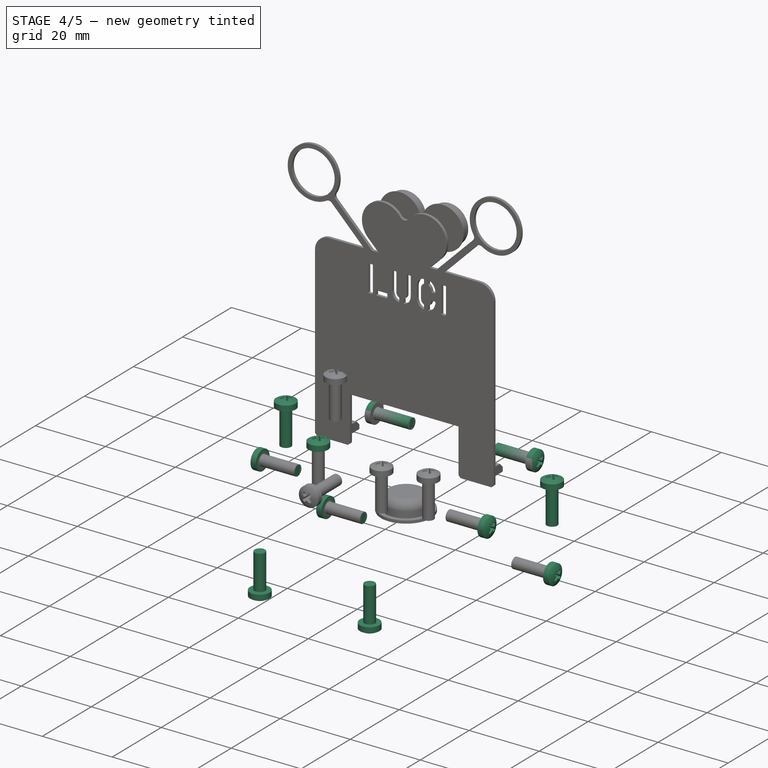
[diagram: stage 4 of 5 — iso view after this stage's code; geometry added in this stage tinted green]
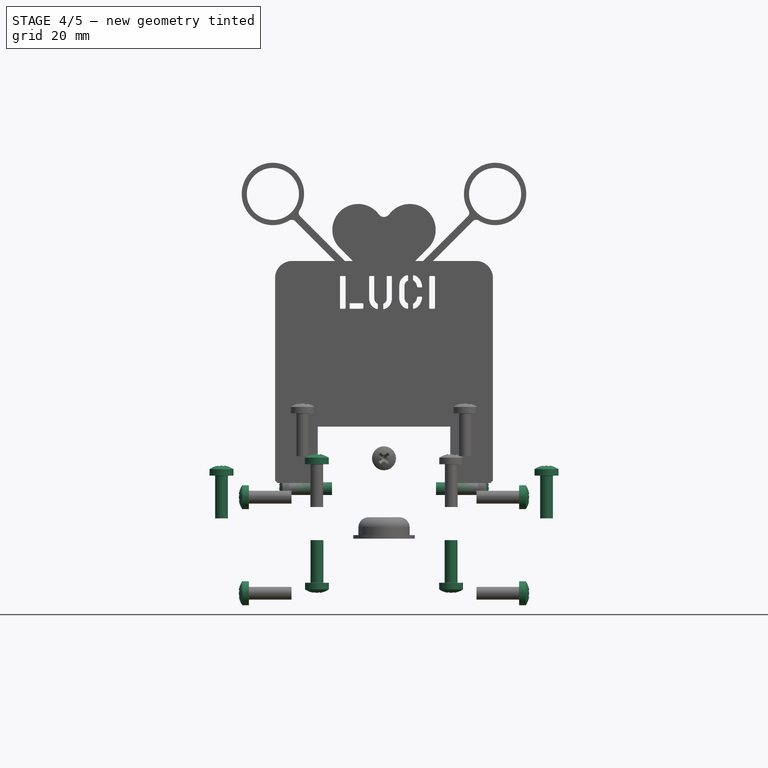
[diagram: stage 4 of 5 — front view after this stage's code; geometry added in this stage tinted green]
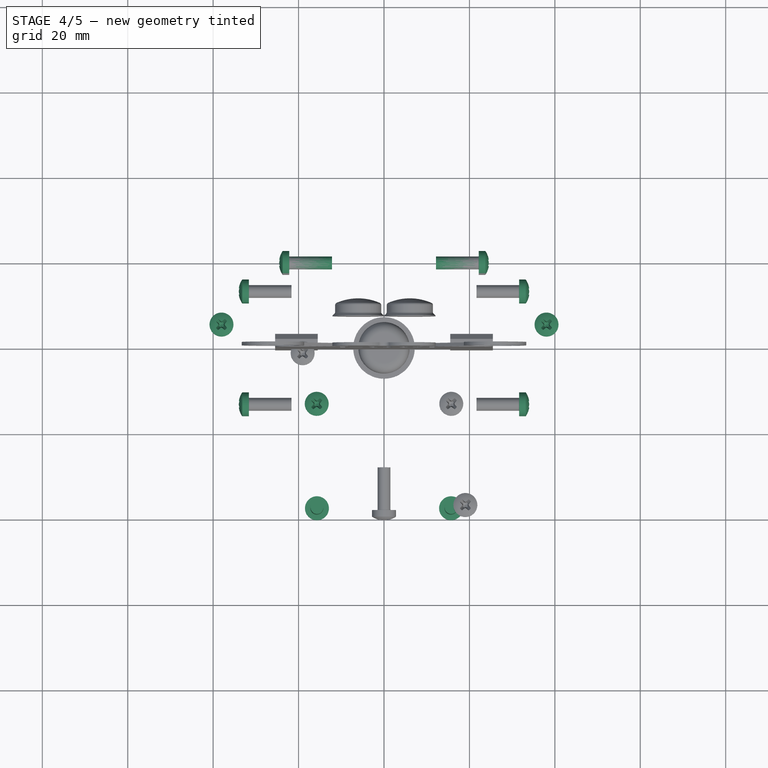
[diagram: stage 4 of 5 — top view after this stage's code; geometry added in this stage tinted green]
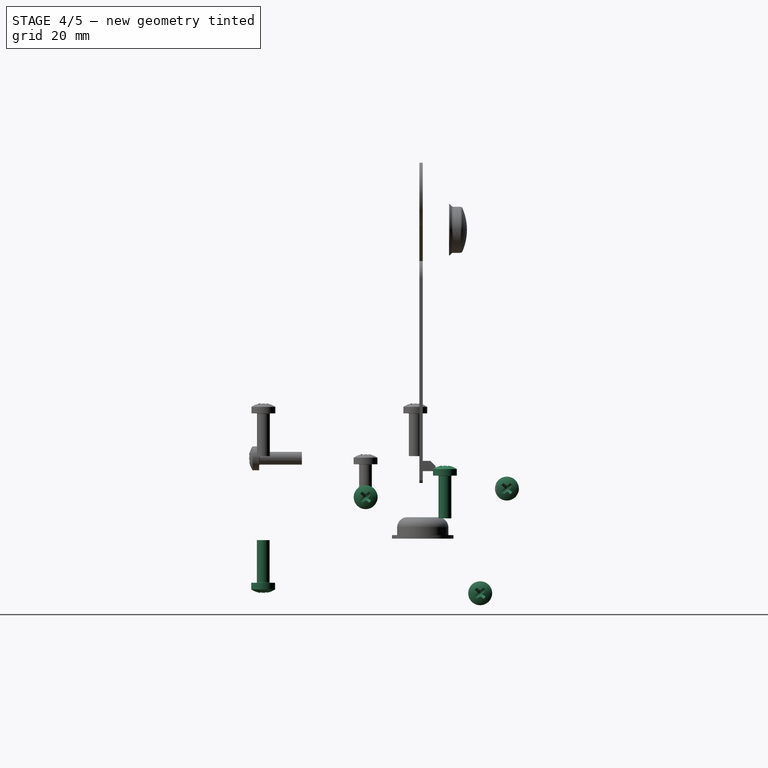
[diagram: stage 4 of 5 — right view after this stage's code; geometry added in this stage tinted green]
FEATURE [Sketcher::SketchObject] Sketch032  label="Sketch-base"
  FullyConstrained = true
  MapMode = 5
  Support = -> [XY_Plane017]
  expr: Constraints[0] = <<Config>>.sh_passing_diameter
  sketch-geometry (11):
    g0: Circle CenterX=-15.7 CenterY=0 CenterZ=0 NormalX=0 NormalY=0 NormalZ=1 AngleXU=0 Radius=1.7
    g1: Circle CenterX=0 CenterY=0 CenterZ=0 NormalX=0 NormalY=0 NormalZ=1 AngleXU=0 Radius=9.5
    g2: Circle CenterX=15.7 CenterY=0 CenterZ=0 NormalX=0 NormalY=0 NormalZ=1 AngleXU=0 Radius=1.7
    g3: LineSegment StartX=16.942 StartY=2.73081 StartZ=0 EndX=3.93312 EndY=8.64758 EndZ=0
    g4: ArcOfCircle CenterX=0 CenterY=0 CenterZ=0 NormalX=0 NormalY=0 NormalZ=1 AngleXU=0 Radius=9.5 StartAngle=1.14394 EndAngle=1.99765
    g5: LineSegment StartX=-3.93312 StartY=8.64758 StartZ=0 EndX=-16.942 EndY=2.73081 EndZ=0
    g6: ArcOfCircle CenterX=-15.7 CenterY=0 CenterZ=0 NormalX=0 NormalY=0 NormalZ=1 AngleXU=0 Radius=3 StartAngle=1.99765 EndAngle=4.28553
    g7: ArcOfCircle CenterX=15.7 CenterY=0 CenterZ=0 NormalX=0 NormalY=0 NormalZ=1 AngleXU=0 Radius=3 StartAngle=5.13925 EndAngle=7.42712
    g8: LineSegment StartX=-16.942 StartY=-2.73081 StartZ=0 EndX=-3.93312 EndY=-8.64758 EndZ=0
    g9: ArcOfCircle CenterX=0 CenterY=0 CenterZ=0 NormalX=0 NormalY=0 NormalZ=1 AngleXU=0 Radius=9.5 StartAngle=4.28553 EndAngle=5.13925
    g10: LineSegment StartX=3.93312 StartY=-8.64758 StartZ=0 EndX=16.942 EndY=-2.73081 EndZ=0
  constraints (23):
    c: Diameter(g0) = 3.4
    c: Radius(g1) = 9.5
    c: Equal(g2,g0)
    c: Symmetric(g0,g2,g-2)
    c: Tangent(g3,g4) = -1.5708
    c: Tangent(g4,g5) = -1.5708
    c: Coincident(g4,g1)
    c: PointOnObject(g3,g1)
    c: DistanceX(g0,g2) = 31.4
    c: Coincident(g6,g0)
    c: Tangent(g6,g5) = -1.5708
    c: Diameter(g6) = 6
    c: Coincident(g7,g2)
    c: Tangent(g7,g3) = -1.5708
    c: Coincident(g4,g-1)
    c: PointOnObject(g2,g-1)
    c: Tangent(g6,g8) = -1.5708
    c: Tangent(g8,g9) = -1.5708
    c: Tangent(g9,g10) = -1.5708
    c: Tangent(g7,g10) = -1.5708
    c: Coincident(g1,g9)
    c: PointOnObject(g9,g1)
    c: Equal(g7,g6)
FEATURE [PartDesign::Pad] Pad024  label="Pad-base"
  Direction = (0,0,1)
  Length = 2
  Length2 = 100
  Profile = -> Sketch032
  ReferenceAxis = -> Sketch032 [N_Axis]
  Reversed = true
  Type = 0
FEATURE [Sketcher::SketchObject] Sketch002  label="Sketch-cross-recess"
  AttachmentOffset = pos=(0,0,-21.4) rot=(0,0,1;0rad)
  FullyConstrained = true
  MapMode = 5
  Placement = pos=(0,0,-21.4) rot=(0,0,1;0rad)
  Support = -> [XY_Plane017]
  expr: Constraints[15] = (<<Config>>.bc_diameter + <<Config>>.bc_space) * 0.375
  sketch-geometry (16):
    g0: LineSegment StartX=-2.7 StartY=12.7 StartZ=0 EndX=2.7 EndY=12.7 EndZ=0
    g1: LineSegment StartX=2.7 StartY=12.7 StartZ=0 EndX=2.7 EndY=2.7 EndZ=0
    g2: LineSegment StartX=2.7 StartY=-12.7 StartZ=0 EndX=-2.7 EndY=-12.7 EndZ=0
    g3: LineSegment StartX=-2.7 StartY=-12.7 StartZ=0 EndX=-2.7 EndY=-2.7 EndZ=0
    g4: LineSegment StartX=-12.7 StartY=2.7 StartZ=0 EndX=-2.7 EndY=2.7 EndZ=0
    g5: LineSegment StartX=12.7 StartY=2.7 StartZ=0 EndX=12.7 EndY=-2.7 EndZ=0
    g6: LineSegment StartX=12.7 StartY=-2.7 StartZ=0 EndX=2.7 EndY=-2.7 EndZ=0
    g7: LineSegment StartX=-12.7 StartY=-2.7 StartZ=0 EndX=-12.7 EndY=2.7 EndZ=0
    g8: LineSegment StartX=2.7 StartY=2.7 StartZ=0 EndX=12.7 EndY=2.7 EndZ=0
    g9: LineSegment StartX=-2.7 StartY=2.7 StartZ=0 EndX=-2.7 EndY=12.7 EndZ=0
    g10: LineSegment StartX=2.7 StartY=-2.7 StartZ=0 EndX=2.7 EndY=-12.7 EndZ=0
    g11: LineSegment StartX=-2.7 StartY=-2.7 StartZ=0 EndX=-12.7 EndY=-2.7 EndZ=0
    g12: LineSegment StartX=-2.7 StartY=2.7 StartZ=0 EndX=2.7 EndY=2.7 EndZ=0
    g13: LineSegment StartX=2.7 StartY=2.7 StartZ=0 EndX=2.7 EndY=-2.7 EndZ=0
    g14: LineSegment StartX=2.7 StartY=-2.7 StartZ=0 EndX=-2.7 EndY=-2.7 EndZ=0
    g15: LineSegment StartX=-2.7 StartY=-2.7 StartZ=0 EndX=-2.7 EndY=2.7 EndZ=0
  constraints (43):
    c: Coincident(g12,g13)
    c: Coincident(g13,g14)
    c: Coincident(g14,g15)
    c: Coincident(g15,g12)
    c: Horizontal(g12)
    c: Horizontal(g14)
    c: Vertical(g13)
    c: Vertical(g15)
    c: Coincident(g12,g4)
    c: Coincident(g13,g6)
    c: Coincident(g3,g11)
    c: Coincident(g3,g14)
    c: Coincident(g1,g8)
    c: Coincident(g1,g12)
    c: Equal(g15,g12)
    c: DistanceX(g12,g12) = 5.4
    c: Coincident(g4,g9)
    c: Coincident(g6,g10)
    c: Symmetric(g4,g6,g-1)
    c: Coincident(g5,g8)
    c: Coincident(g5,g6)
    c: Coincident(g0,g1)
    c: Coincident(g0,g9)
    c: Coincident(g4,g7)
    c: Coincident(g7,g11)
    c: Coincident(g2,g3)
    c: Coincident(g2,g10)
    c: Vertical(g9)
    c: Vertical(g3)
    c: Vertical(g10)
    c: Vertical(g1)
    c: Vertical(g7)
    c: Vertical(g5)
    c: Horizontal(g0)
    c: Horizontal(g2)
    c: Horizontal(g11)
    c: Horizontal(g6)
    c: Horizontal(g8)
    c: Horizontal(g4)
    c: Equal(g4,g9)
    c: Equal(g9,g3)
    c: Equal(g3,g6)
    c: DistanceY(g1,g1) = 10
FEATURE [Sketcher::SketchObject] Sketch003  label="Sketch-cylinder"
  FullyConstrained = true
  MapMode = 5
  Placement = pos=(0,0,0) rot=(0.57735,0.57735,0.57735;2.0944rad)
  Support = -> [YZ_Plane017]
  expr: Constraints[0] = <<Config>>.bc_diameter / 2 + 2.5
  expr: Constraints[5] = (<<Config>>.bc_diameter + <<Config>>.bc_space) / 2
  sketch-geometry (7):
    g0: LineSegment StartX=9.5 StartY=0 StartZ=0 EndX=0 EndY=0 EndZ=0
    g1: ArcOfCircle CenterX=0 CenterY=-18.15 CenterZ=0 NormalX=0 NormalY=0 NormalZ=1 AngleXU=0 Radius=7.2 StartAngle=4.71239 EndAngle=7.85398
    g2: LineSegment StartX=2.2e-15 StartY=-10.95 StartZ=0 EndX=0 EndY=0 EndZ=0
    g3: LineSegment StartX=9.5 StartY=0 StartZ=0 EndX=9.5 EndY=-20.4 EndZ=0
    g4: LineSegment StartX=9.5 StartY=-20.4 StartZ=0 EndX=8.5 EndY=-21.4 EndZ=0
    g5: LineSegment StartX=8.5 StartY=-21.4 StartZ=0 EndX=6.42476 EndY=-21.4 EndZ=0
    g6: ArcOfCircle CenterX=0 CenterY=-18.15 CenterZ=0 NormalX=0 NormalY=0 NormalZ=1 AngleXU=0 Radius=7.2 StartAngle=5.81486 EndAngle=7.85398
  constraints (21):
    c: DistanceX(g0,g0) = 9.5
    c: PointOnObject(g1,g-2)
    c: PointOnObject(g1,g-2)
    c: PointOnObject(g1,g-2)
    c: DistanceY(g1) = -25.35
    c: Radius(g1) = 7.2
    c: Coincident(g2,g0)
    c: Vertical(g3)
    c: Coincident(g3,g4)
    c: Coincident(g4,g5)
    c: Horizontal(g5)
    c: Coincident(g6,g1)
    c: Coincident(g6,g2)
    c: Coincident(g6,g5)
    c: DistanceY(g4) = -21.4
    c: Angle(g3,g4) = 2.35619
    c: DistanceY(g4,g3) = 1
    c: Coincident(g3,g0)
    c: Horizontal(g0)
    c: Coincident(g0,g-1)
    c: Coincident(g2,g1)
FEATURE [PartDesign::Revolution] Revolution  label="Revolution-cylinder"
  Angle = 360
  Axis = (-2e-16,3e-16,1)
  Base = (0,0,0)
  BaseFeature = -> Pad024
  Profile = -> Sketch003
  ReferenceAxis = -> Sketch003 [V_Axis]
  Refine = true
  Reversed = true
FEATURE [PartDesign::Pocket] Pocket009  label="Pocket-cross-recess"
  BaseFeature = -> Revolution
  Direction = (0,0,-1)
  Length = 11
  Length2 = 100
  Profile = -> Sketch002
  ReferenceAxis = -> Sketch002 [N_Axis]
  Reversed = true
  Type = 0
FEATURE [PartDesign::Body] Body003004002007001011002  label="Body-switch-holder"
  Group = -> [Sketch035,Pad027,Sketch039,Sketch040,Sketch041,Pad028,Pocket010,Pad029,Chamfer005]
  Origin = -> Origin020
  Placement = pos=(0,15.6,-22.4) rot=(0,0,1;0rad)
  Tip = -> Chamfer005
FEATURE [Part::FeaturePython] Screw  label="M3x10-Screw"  # Fasteners workbench fastener (typed FeaturePython)
  Placement = pos=(-31.6497,-13.3721,7.89495) rot=(1e-05,-1,0;1.57078rad)
  baseObject = -> Compound002 [Edge500]
  diameter = 4
  invert = false
  leftHanded = false
  length = 4
  lengthCustom = 10
  matchOuter = true
  offset = 0
  thread = false
  type = 35
FEATURE [Part::FeaturePython] Screw001  label="M3x10-Screw001"  # Fasteners workbench fastener (typed FeaturePython)
  Placement = pos=(-31.6504,13.4404,-14.6015) rot=(1e-05,-1,0;1.57078rad)
  baseObject = -> Compound002 [Edge474]
  diameter = 4
  invert = false
  leftHanded = false
  length = 4
  lengthCustom = 10
  matchOuter = true
  offset = 0
  thread = false
  type = 35
FEATURE [Part::FeaturePython] Screw002  label="M3x10-Screw180"  # Fasteners workbench fastener (typed FeaturePython)
  Placement = pos=(-22.1867,19.7,9.9) rot=(0,-1,0;1.5708rad)
  baseObject = -> Body003004002007001008 [Edge182]
  diameter = 4
  invert = true
  leftHanded = false
  length = 4
  lengthCustom = 10
  matchOuter = false
  offset = 0
  thread = false
  type = 35
FEATURE [Part::FeaturePython] Screw003  label="M3x10-Screw003"  # Fasteners workbench fastener (typed FeaturePython)
  Placement = pos=(31.6499,13.4401,-14.6024) rot=(-3e-06,1,0;1.5708rad)
  baseObject = -> Compound001 [Edge500]
  diameter = 4
  invert = false
  leftHanded = false
  length = 4
  lengthCustom = 10
  matchOuter = true
  offset = 0
  thread = false
  type = 35
FEATURE [Part::FeaturePython] Screw004  label="M3x10-Screw004"  # Fasteners workbench fastener (typed FeaturePython)
  Placement = pos=(31.6501,-13.3715,7.89507) rot=(-3e-06,1,0;1.5708rad)
  baseObject = -> Compound001 [Edge474]
  diameter = 4
  invert = false
  leftHanded = false
  length = 4
  lengthCustom = 10
  matchOuter = true
  offset = 0
  thread = false
  type = 35
FEATURE [Part::FeaturePython] Screw005  label="M3x10-Screw181"  # Fasteners workbench fastener (typed FeaturePython)
  Placement = pos=(22.1867,19.7,9.9) rot=(0,1,0;1.5708rad)
  baseObject = -> Body003004002007001008 [Edge202]
  diameter = 4
  invert = false
  leftHanded = false
  length = 4
  lengthCustom = 10
  matchOuter = false
  offset = 0
  thread = false
  type = 35
FEATURE [Part::FeaturePython] Screw012  label="M3x10-Screw016"  # Fasteners workbench fastener (typed FeaturePython)
  Placement = pos=(38.05,5.2,12.925) rot=(0,0,1;0rad)
  diameter = 4
  invert = false
  leftHanded = false
  length = 4
  lengthCustom = 10
  matchOuter = true
  offset = 2
  thread = false
  type = 35
FEATURE [Part::FeaturePython] Screw013  label="M3x10-Screw017"  # Fasteners workbench fastener (typed FeaturePython)
  Placement = pos=(-38.05,5.2,12.925) rot=(0,0,1;0rad)
  baseObject = -> Body003004002007001011003007
  diameter = 4
  invert = false
  leftHanded = false
  length = 4
  lengthCustom = 10
  matchOuter = true
  offset = 2
  thread = false
  type = 35
FEATURE [Part::FeaturePython] Screw014  label="M3x10-Screw124"  # Fasteners workbench fastener (typed FeaturePython)
  Placement = pos=(15.7,-37.35,-12.15) rot=(1,0,0;3.14159rad)
  baseObject = -> Body003004002007001011 [Edge41]
  diameter = 4
  invert = true
  leftHanded = false
  length = 4
  lengthCustom = 10
  matchOuter = true
  offset = 0
  thread = false
  type = 35
FEATURE [Part::FeaturePython] Screw015  label="M3x10-Screw125"  # Fasteners workbench fastener (typed FeaturePython)
  Placement = pos=(-15.7,-37.35,-12.15) rot=(1,0,0;3.14159rad)
  baseObject = -> Body003004002007001011 [Edge86]
  diameter = 4
  invert = true
  leftHanded = false
  length = 4
  lengthCustom = 10
  matchOuter = true
  offset = 0
  thread = false
  type = 35
FEATURE [PartDesign::Body] Body003004002007001010  label="Body-keypad-chasis-support"
  Group = -> [Sketch030,Pad022,Sketch031,Pad023,Sketch043,Pad030]
  Origin = -> Origin016
  Placement = pos=(0,0,14) rot=(0,0,1;0rad)
  Tip = -> Pad030
FEATURE [Part::FeaturePython] Screw016  label="M3x10-Screw095"  # Fasteners workbench fastener (typed FeaturePython)
  Placement = pos=(-15.75,-13.4,15.6) rot=(0,0,1;0rad)
  baseObject = -> Body003004002007001010 [Edge25]
  diameter = 4
  invert = false
  leftHanded = false
  length = 4
  lengthCustom = 10
  matchOuter = true
  offset = 0
  thread = false
  type = 35
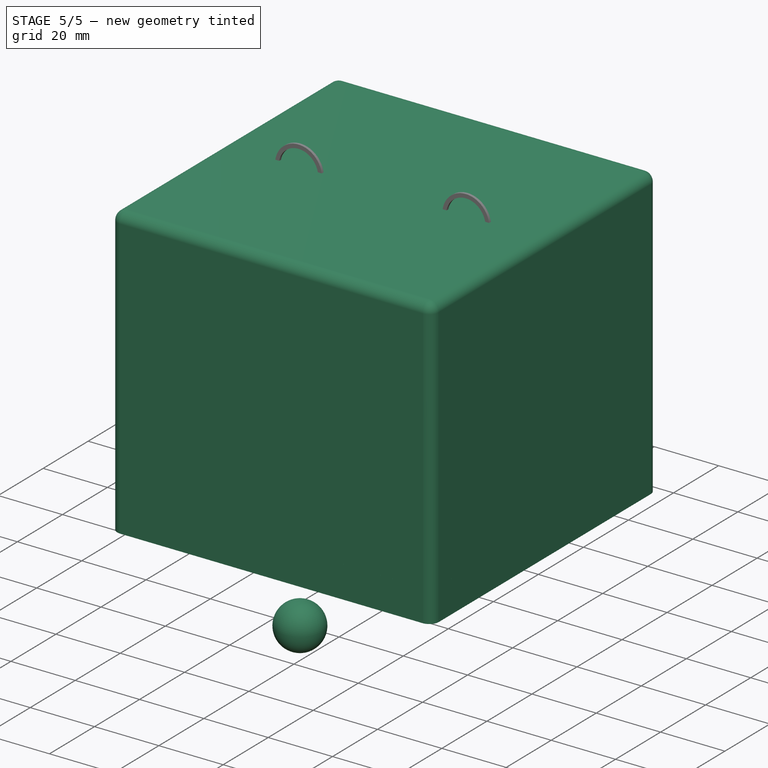
[diagram: stage 5 of 5 — iso view after this stage's code; geometry added in this stage tinted green]
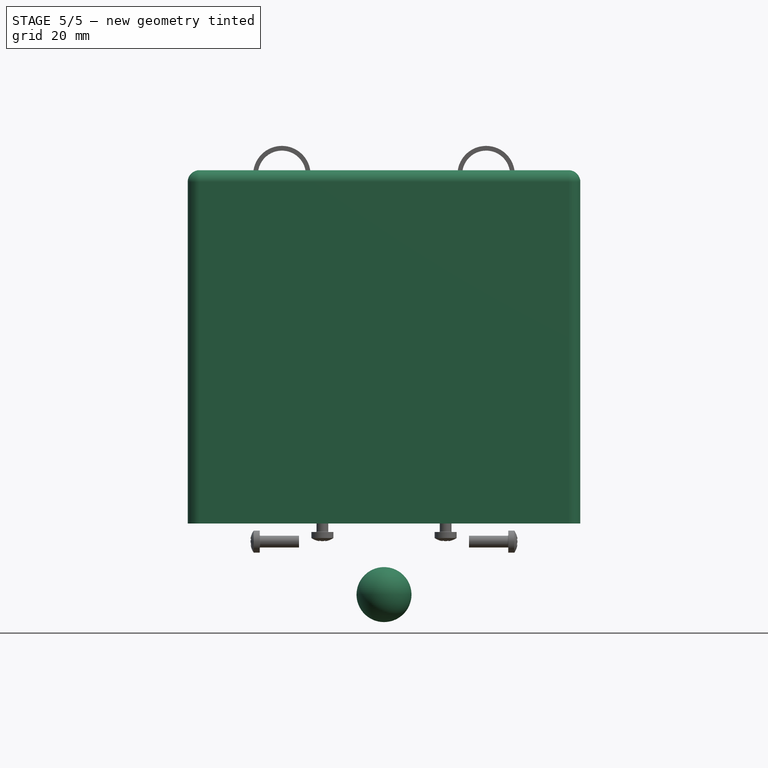
[diagram: stage 5 of 5 — front view after this stage's code; geometry added in this stage tinted green]
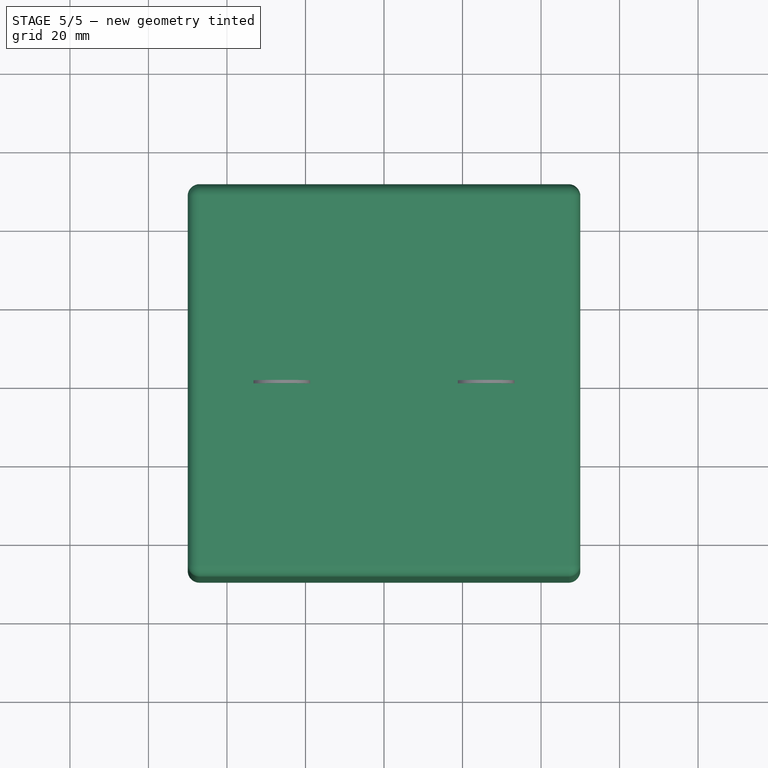
[diagram: stage 5 of 5 — top view after this stage's code; geometry added in this stage tinted green]
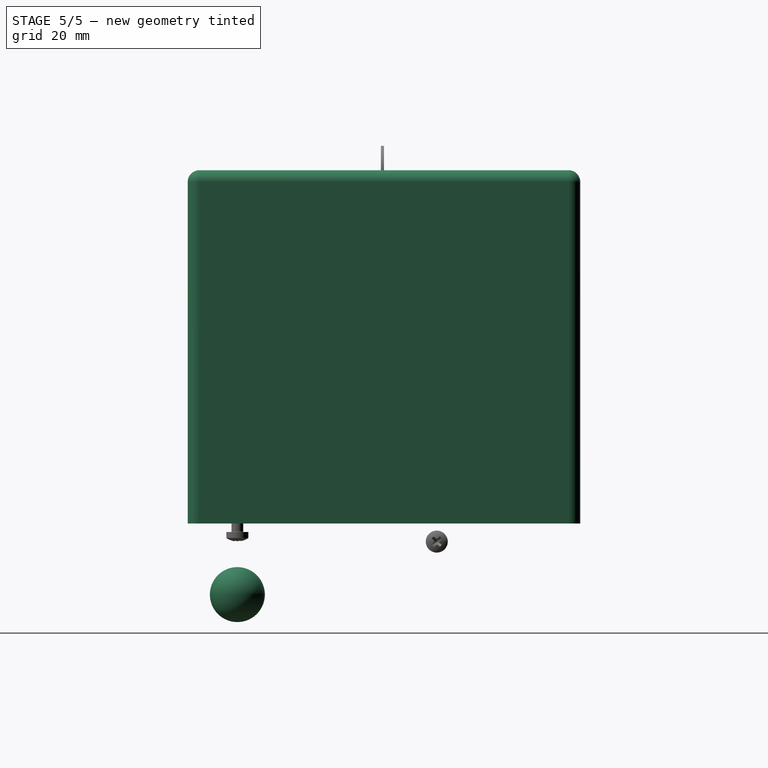
[diagram: stage 5 of 5 — right view after this stage's code; geometry added in this stage tinted green]
FEATURE [Part::Feature] Compound001  label="28BYJ-48-R"
  Placement = pos=(31.65,0.034331,-3.35367) rot=(0.389282,0.834817,0.389282;1.75037rad)
  shape: bbox 31.33 x 36.01 x 37.19 mm, 316 faces, 5 solids (baked)
FEATURE [Part::Feature] Shape001  label="S4_B3F-4050"
  Placement = pos=(39.37,23.15,0) rot=(0,0,1;1.5708rad)
  shape: bbox 12 x 13.8 x 10.8 mm, 103 faces, 7 solids (baked)
FEATURE [Part::Feature] Shape  label="S5_B3F-4050"
  Placement = pos=(24.13,23.15,0) rot=(0,0,1;3.14159rad)
  shape: bbox 13.8 x 12 x 10.8 mm, 103 faces, 7 solids (baked)
FEATURE [Part::Feature] Shape002  label="S3_B3F-4050"
  Placement = pos=(24.13,7.91,0) rot=(0,0,1;0rad)
  shape: bbox 13.8 x 12 x 10.8 mm, 103 faces, 7 solids (baked)
FEATURE [Part::Feature] Shape004  label="S2_B3F-4050"
  Placement = pos=(8.89,23.15,0) rot=(0,0,-1;1.5708rad)
  shape: bbox 12 x 13.8 x 10.8 mm, 103 faces, 7 solids (baked)
FEATURE [Part::Feature] Part__Feature004  label="10k-R3"
  Placement = pos=(14.225,9.65,1.6) rot=(0,0,1;1.5708rad)
  shape: bbox 2.5 x 6.3 x 2.5 mm, 18 faces (baked)
FEATURE [Part::Feature] Part__Feature002  label="10k-R2"
  Placement = pos=(37.35,9.65,1.6) rot=(0,0,1;1.5708rad)
  shape: bbox 2.5 x 6.3 x 2.5 mm, 18 faces (baked)
FEATURE [Part::Feature] Shape003  label="S1_B3F-4050"
  Placement = pos=(24.13,38.39,0) rot=(0,0,1;3.14159rad)
  shape: bbox 13.8 x 12 x 10.8 mm, 103 faces, 7 solids (baked)
FEATURE [Part::Feature] Part__Feature008  label="10k-R5"
  Placement = pos=(14.1,36.6,1.6) rot=(0,0,1;1.5708rad)
  shape: bbox 2.5 x 6.3 x 2.5 mm, 18 faces (baked)
FEATURE [Part::Feature] Part__Feature003  label="wire-R2"
  Placement = pos=(37.35,9.65,1.6) rot=(0,0,1;1.5708rad)
  shape: bbox 0.6 x 8.438 x 4.659 mm, 7 faces (baked)
FEATURE [Part::Feature] Part__Feature005  label="wire-R3"
  Placement = pos=(14.225,9.65,1.6) rot=(0,0,1;1.5708rad)
  shape: bbox 0.6 x 8.438 x 4.659 mm, 7 faces (baked)
FEATURE [Part::Feature] Part__Feature006  label="10k-R4"
  Placement = pos=(10.9,36.6,1.6) rot=(0,0,1;1.5708rad)
  shape: bbox 2.5 x 6.3 x 2.5 mm, 18 faces (baked)
FEATURE [Part::Feature] Part__Feature007  label="wire-R4"
  Placement = pos=(10.9,36.6,1.6) rot=(0,0,1;1.5708rad)
  shape: bbox 0.6 x 8.438 x 4.659 mm, 7 faces (baked)
FEATURE [Part::Feature] Part__Feature009  label="wire-R5"
  Placement = pos=(14.1,36.6,1.6) rot=(0,0,1;1.5708rad)
  shape: bbox 0.6 x 8.438 x 4.659 mm, 7 faces (baked)
FEATURE [Part::Feature] Shape005  label="J1_PinHeader_1x02"
  Placement = pos=(37.465,34.3916,-1.6) rot=(0.707107,0.707107,0;3.14159rad)
  shape: bbox 5.08 x 10.36 x 5.54 mm, 58 faces (baked)
FEATURE [Part::Feature] Part001004  label="keycap3"
  Placement = pos=(8.89,23.15,7) rot=(0,0,1;0rad)
  shape: bbox 13.85 x 13.85 x 8.25 mm, 51 faces (baked)
FEATURE [Part::Feature] Part001001  label="keycap"
  Placement = pos=(24.14,7.9,7) rot=(0,0,1;0rad)
  shape: bbox 13.85 x 13.85 x 8.25 mm, 51 faces (baked)
FEATURE [Part::Feature] Part001003  label="keycap2"
  Placement = pos=(24.14,38.4,7) rot=(0,0,1;0rad)
  shape: bbox 13.85 x 13.85 x 8.25 mm, 51 faces (baked)
FEATURE [Part::Feature] Part001005  label="keycap4"
  Placement = pos=(39.37,23.15,7) rot=(0,0,1;0rad)
  shape: bbox 13.85 x 13.85 x 8.25 mm, 51 faces (baked)
FEATURE [Part::Feature] Part001002  label="keycap1"
  Placement = pos=(24.14,23.15,7) rot=(0,0,1;0rad)
  shape: bbox 13.85 x 13.85 x 8.25 mm, 51 faces (baked)
FEATURE [Part::Feature] Part__Feature  label="10k-R1"
  Placement = pos=(34.03,9.65,1.6) rot=(0,0,1;1.5708rad)
  shape: bbox 2.5 x 6.3 x 2.5 mm, 18 faces (baked)
FEATURE [Part::Feature] Part__Feature001  label="wire-R1"
  Placement = pos=(34.03,9.65,1.6) rot=(0,0,1;1.5708rad)
  shape: bbox 0.6 x 8.438 x 4.659 mm, 7 faces (baked)
FEATURE [Part::Feature] Pcb_67e6  label="Pcb"
  Placement = pos=(-100,146.3,0) rot=(0,0,1;0rad)
  shape: bbox 48.39 x 46.3 x 1.6 mm, 56 faces (baked)
FEATURE [Part::Feature] Fusion001  label="driver-board-R"
  Placement = pos=(16.15,32.9,-4.95) rot=(0.57735,-0.57735,0.57735;4.18879rad)
  shape: bbox 11.94 x 31.7 x 34.5 mm, 2024 faces (baked)
FEATURE [Part::Feature] Box001  label="mini-bb-adhesive"
  Placement = pos=(-22.95,-17.2,-1.5) rot=(0,0,1;0rad)
  shape: bbox 45.9 x 34.4 x 1.5 mm, 6 faces (baked)
FEATURE [Part::Feature] Chamfer002  label="mini-bb"
  shape: bbox 46 x 34.5 x 8 mm, 1549 faces (baked)
FEATURE [Part::Feature] Fusion014001  label="nano-v3"
  Placement = pos=(-21.86,-12.7,12.2) rot=(-1,0,0;1.5708rad)
  shape: bbox 45.1 x 17.9 x 18 mm, 1635 faces (baked)
FEATURE [App::Part] Part_minibreadboard  label="Part-board"
  Group = -> [Chamfer002,Box001,Fusion014001]
  Origin = -> Origin007
  Placement = pos=(1e-16,26.5,15.5) rot=(0,0,1;0rad)
FEATURE [Part::FeaturePython] Clone003  label="pole"  # WARN: FeaturePython — macro-defined, semantics opaque (R4)
  Placement = pos=(0,0,0) rot=(1,0,0;1.5708rad)
  Scale = (1,1,1)
FEATURE [Part::FeaturePython] Clone002  label="body"  # WARN: FeaturePython — macro-defined, semantics opaque (R4)
  Scale = (1,1,1)
FEATURE [Part::Feature] Fusion014002  label="contacts"
  shape: bbox 11.5 x 5.5 x 4.125 mm, 24 faces (baked)
FEATURE [App::Part] Part001008  label="Part-switch"
  Group = -> [Clone002,Clone003,Fusion014002]
  Origin = -> Origin009
  Placement = pos=(1e-16,19.9,-18.5) rot=(0,1,0;3.14159rad)
FEATURE [Part::Feature] Body003004002007001003  label="powerbank-DIY"
  Placement = pos=(-12.3572,0.5,1.0933) rot=(0,1,0;1.59279rad)
  shape: bbox 25.2 x 96.5 x 22.3 mm, 64 faces (baked)
FEATURE [Part::Feature] Compound002  label="28BYJ-48-L"
  Placement = pos=(-31.65,0.0341774,-3.35327) rot=(0.3893,-0.8348,-0.3893;1.75036rad)
  shape: bbox 31.33 x 36.01 x 37.19 mm, 316 faces, 5 solids (baked)
FEATURE [Part::Feature] Fusion014003  label="driver-board-L"
  Placement = pos=(-16.15,32.9,-5) rot=(0.57735,0.57735,-0.57735;4.18879rad)
  shape: bbox 11.94 x 31.7 x 34.5 mm, 2024 faces (baked)
FEATURE [Part::Feature] Body001001  label="keypad-cover"
  Placement = pos=(24.2,23.15,8.45) rot=(0,0,1;3.14159rad)
  shape: bbox 50.89 x 48.8 x 13.4 mm, 63 faces (baked)
FEATURE [App::Part] Part001006  label="Part-keypad"
  Group = -> [Pcb_67e6,Part__Feature,Part__Feature001,Part__Feature002,Part__Feature003,Part__Feature004,Part__Feature005,Part__Feature006,Part__Feature007,Part__Feature008,Part__Feature009,Shape,Shape001,Shape002,Shape003,Shape004,Shape005,Part001001,Part001002,Part001003,Part001004,Part001005,Body001001]
  Origin = -> Origin005
  Placement = pos=(-24.15,-42.4,25.15) rot=(0,0,1;0rad)
FEATURE [Sketcher::SketchObject] Sketch  label="Sketch-case-floor"
  FullyConstrained = true
  MapMode = 5
  Support = -> [XY_Plane]
  sketch-geometry (4):
    g0: LineSegment StartX=-50 StartY=50 StartZ=0 EndX=50 EndY=50 EndZ=0
    g1: LineSegment StartX=50 StartY=50 StartZ=0 EndX=50 EndY=-50 EndZ=0
    g2: LineSegment StartX=50 StartY=-50 StartZ=0 EndX=-50 EndY=-50 EndZ=0
    g3: LineSegment StartX=-50 StartY=-50 StartZ=0 EndX=-50 EndY=50 EndZ=0
  constraints (11):
    c: Coincident(g0,g1)
    c: Coincident(g1,g2)
    c: Coincident(g2,g3)
    c: Coincident(g3,g0)
    c: Horizontal(g0)
    c: Horizontal(g2)
    c: Vertical(g1)
    c: Vertical(g3)
    c: Symmetric(g0,g1,g-1)
    c: Equal(g0,g1)
    c: DistanceY(g1,g1) = 100
FEATURE [PartDesign::Pad] Pad  label="Pad-case-floor"
  Direction = (0,0,1)
  Length = 10
  Length2 = 100
  Profile = -> Sketch
  ReferenceAxis = -> Sketch [N_Axis]
  Reversed = true
  Type = 0
FEATURE [PartDesign::Body] Body003004002007001011  label="Body-ball-caster"
  Group = -> [Sketch032,Pad024,Sketch002,Sketch003,Revolution,Pocket009]
  Origin = -> Origin017
  Placement = pos=(0,-37.35,-10.15) rot=(0,0,1;0rad)
  Tip = -> Pocket009
FEATURE [Part::Sphere] Sphere  label="ball"
  Angle1 = -90
  Angle2 = 90
  Angle3 = 360
  AttacherType = Attacher::AttachEngine3D
  Placement = pos=(0,-37.35,-28.1) rot=(0,0,1;0.785398rad)
  Radius = 7
FEATURE [Spreadsheet::Sheet] Spreadsheet  label="Config"
  cells = A1=Escornabot Project; A2=ball-caster; A3=ball diameter; B3(bc_diameter)=14; A4=space; B4(bc_space)=0.4; A5=screw-hole; A6=diameter; B6(sh_diameter)=2.65; A7=passing-diameter; B7(sh_passing_diameter)==B6 + 0.75; A8=depth; B8(sh_depth)=9.5; A9=head-recess-diameter; B9(head_recess_diameter)=6
FEATURE [Sketcher::SketchObject] Sketch033  label="Sketch-case-cover-walls"
  FullyConstrained = true
  MapMode = 5
  Support = -> [XY_Plane019]
  sketch-geometry (12):
    g0: LineSegment StartX=-50 StartY=50 StartZ=0 EndX=50 EndY=50 EndZ=0
    g1: LineSegment StartX=50 StartY=50 StartZ=0 EndX=50 EndY=-50 EndZ=0
    g2: LineSegment StartX=50 StartY=-50 StartZ=0 EndX=-50 EndY=-50 EndZ=0
    g3: LineSegment StartX=-50 StartY=-50 StartZ=0 EndX=-50 EndY=50 EndZ=0
    g4: LineSegment StartX=-49 StartY=49 StartZ=0 EndX=49 EndY=49 EndZ=0
    g5: LineSegment StartX=49 StartY=49 StartZ=0 EndX=49 EndY=-49 EndZ=0
    g6: LineSegment StartX=49 StartY=-49 StartZ=0 EndX=-49 EndY=-49 EndZ=0
    g7: LineSegment StartX=-49 StartY=-49 StartZ=0 EndX=-49 EndY=49 EndZ=0
    g8: LineSegment StartX=-49 StartY=49 StartZ=0 EndX=-49 EndY=50 EndZ=0
    g9: LineSegment StartX=-49 StartY=49 StartZ=0 EndX=-50 EndY=49 EndZ=0
    g10: LineSegment StartX=49 StartY=-49 StartZ=0 EndX=49 EndY=-50 EndZ=0
    g11: LineSegment StartX=49 StartY=-49 StartZ=0 EndX=50 EndY=-49 EndZ=0
  constraints (34):
    c: Coincident(g0,g1)
    c: Coincident(g1,g2)
    c: Coincident(g2,g3)
    c: Coincident(g3,g0)
    c: Horizontal(g0)
    c: Horizontal(g2)
    c: Vertical(g1)
    c: Vertical(g3)
    c: Symmetric(g0,g1,g-1)
    c: Equal(g0,g1)
    c: DistanceY(g1,g1) = 100
    c: Coincident(g4,g5)
    c: Coincident(g5,g6)
    c: Coincident(g6,g7)
    c: Coincident(g7,g4)
    c: Horizontal(g4)
    c: Horizontal(g6)
    c: Vertical(g5)
    c: Vertical(g7)
    c: Symmetric(g4,g6,g-1)
    c: Coincident(g8,g4)
    c: PointOnObject(g8,g0)
    c: Vertical(g8)
    c: Coincident(g9,g4)
    c: PointOnObject(g9,g3)
    c: Horizontal(g9)
    c: Coincident(g10,g5)
    c: PointOnObject(g10,g2)
    c: Vertical(g10)
    c: Coincident(g11,g5)
    c: PointOnObject(g11,g1)
    c: Horizontal(g11)
    c: Equal(g11,g10)
    c: DistanceY(g8,g8) = 1
FEATURE [PartDesign::Pad] Pad025  label="Pad-case-cover-walls"
  Direction = (0,0,1)
  Length = 79
  Length2 = 10
  Profile = -> Sketch033
  ReferenceAxis = -> Sketch033 [N_Axis]
  Type = 0
FEATURE [Sketcher::SketchObject] Sketch034  label="Sketch-case-cover-ceiling"
  ExternalGeometry = -> [Pad025]
  FullyConstrained = true
  MapMode = 5
  Placement = pos=(0,0,79) rot=(0,0,1;0rad)
  Support = -> [Pad025]
  sketch-geometry (4):
    g0: LineSegment StartX=50 StartY=50 StartZ=0 EndX=-50 EndY=50 EndZ=0
    g1: LineSegment StartX=-50 StartY=50 StartZ=0 EndX=-50 EndY=-50 EndZ=0
    g2: LineSegment StartX=-50 StartY=-50 StartZ=0 EndX=50 EndY=-50 EndZ=0
    g3: LineSegment StartX=50 StartY=-50 StartZ=0 EndX=50 EndY=50 EndZ=0
  constraints (10):
    c: Coincident(g0,g1)
    c: Coincident(g1,g2)
    c: Coincident(g2,g3)
    c: Coincident(g3,g0)
    c: Horizontal(g0)
    c: Horizontal(g2)
    c: Vertical(g1)
    c: Vertical(g3)
    c: Coincident(g0,g-3)
    c: Coincident(g1,g-4)
FEATURE [PartDesign::Pad] Pad026  label="Pad-case-cover-ceiling"
  BaseFeature = -> Pad025
  Direction = (0,0,1)
  Length = 1
  Length2 = 10
  Profile = -> Sketch034
  ReferenceAxis = -> Sketch034 [N_Axis]
  Refine = true
  Type = 0
FEATURE [PartDesign::Fillet] Fillet  label="Fillet-interior"
  Base = -> Pad026 [Edge18,Face8,Edge20,Edge15,Edge16]
  BaseFeature = -> Pad026
  Radius = 2
  SupportTransform = false
  UseAllEdges = false
FEATURE [PartDesign::Fillet] Fillet001  label="Fillet-exterior"
  Base = -> Fillet [Face22,Edge35,Edge29,Edge31,Edge33]
  BaseFeature = -> Fillet
  Radius = 3
  SupportTransform = false
  UseAllEdges = false
FEATURE [PartDesign::Body] Body003004002007001012  label="Body-case-cover"
  Group = -> [Sketch033,Pad025,Sketch034,Pad026,Fillet,Fillet001]
  Origin = -> Origin019
  Placement = pos=(0,0,-35.1) rot=(0,0,1;0rad)
  Tip = -> Fillet001
FEATURE [PartDesign::Fillet] Fillet002  label="Fillet-floor"
  Base = -> Pad [Edge1,Edge2,Edge8,Edge5]
  BaseFeature = -> Pad
  Radius = 3
  SupportTransform = false
  UseAllEdges = false
FEATURE [PartDesign::Body] Body  label="Body-case-floor"
  Group = -> [Sketch,Pad,Fillet002]
  Origin = -> Origin
  Placement = pos=(0,0,-35.1) rot=(0,0,1;0rad)
  Tip = -> Fillet002
FEATURE [App::Part] Part001009  label="Part-case"
  Group = -> [Body,Body003004002007001012]
  Origin = -> Origin018
FEATURE [Sketcher::SketchObject] Sketch035  label="Sketch-sh-base"
  FullyConstrained = true
  MapMode = 5
  Placement = pos=(0,0,0) rot=(0,0.707107,0.707107;3.14159rad)
  Support = -> [XZ_Plane020]
  sketch-geometry (27):
    g0: LineSegment StartX=-10.2 StartY=0 StartZ=0 EndX=-10.2 EndY=0.5 EndZ=0
    g1: LineSegment StartX=-10.2 StartY=0.5 StartZ=0 EndX=-5.35 EndY=0.5 EndZ=0
    g2: LineSegment StartX=-5.35 StartY=0.5 StartZ=0 EndX=-5.35 EndY=7.5 EndZ=0
    g3: LineSegment StartX=-17.8 StartY=5 StartZ=0 EndX=-17.8 EndY=0 EndZ=0
    g4: LineSegment StartX=-16.2 StartY=-1.6 StartZ=0 EndX=16.2 EndY=-1.6 EndZ=0
    g5: LineSegment StartX=17.8 StartY=-4e-16 StartZ=0 EndX=17.8 EndY=5 EndZ=0
    g6: LineSegment StartX=5.35 StartY=7.5 StartZ=0 EndX=5.35 EndY=0.5 EndZ=0
    g7: LineSegment StartX=5.35 StartY=0.5 StartZ=0 EndX=10.2 EndY=0.5 EndZ=0
    g8: LineSegment StartX=10.2 StartY=0.5 StartZ=0 EndX=10.2 EndY=0 EndZ=0
    g9: LineSegment StartX=10.2 StartY=0 StartZ=0 EndX=-10.2 EndY=0 EndZ=0
    g10: LineSegment StartX=17.8 StartY=5 StartZ=0 EndX=16.2 EndY=5 EndZ=0
    g11: LineSegment StartX=16.2 StartY=5 StartZ=0 EndX=16.2 EndY=0 EndZ=0
    g12: LineSegment StartX=16.2 StartY=0 StartZ=0 EndX=14.5 EndY=0 EndZ=0
    g13: LineSegment StartX=14.5 StartY=0 StartZ=0 EndX=14.5 EndY=5 EndZ=0
    g14: LineSegment StartX=14.5 StartY=5 StartZ=0 EndX=12.7 EndY=5 EndZ=0
    g15: LineSegment StartX=-17.8 StartY=5 StartZ=0 EndX=-16.2 EndY=5 EndZ=0
    g16: LineSegment StartX=-16.2 StartY=5 StartZ=0 EndX=-16.2 EndY=0 EndZ=0
    g17: LineSegment StartX=-16.2 StartY=0 StartZ=0 EndX=-14.5 EndY=0 EndZ=0
    g18: LineSegment StartX=-14.5 StartY=0 StartZ=0 EndX=-14.5 EndY=5 EndZ=0
    g19: LineSegment StartX=-14.5 StartY=5 StartZ=0 EndX=-12.7 EndY=5 EndZ=0
    g20: ArcOfCircle CenterX=16.2 CenterY=0 CenterZ=0 NormalX=0 NormalY=0 NormalZ=1 AngleXU=0 Radius=1.6 StartAngle=4.71239 EndAngle=6.28319
    g21: ArcOfCircle CenterX=-16.2 CenterY=0 CenterZ=0 NormalX=0 NormalY=0 NormalZ=1 AngleXU=0 Radius=1.6 StartAngle=3.14159 EndAngle=4.71239
    g22: LineSegment StartX=14.5 StartY=5 StartZ=0 EndX=16.2 EndY=5 EndZ=0
    g23: LineSegment StartX=-16.2 StartY=5 StartZ=0 EndX=-14.5 EndY=5 EndZ=0
    g24: LineSegment StartX=12.7 StartY=5 StartZ=0 EndX=12.7 EndY=7.5 EndZ=0
    g25: LineSegment StartX=12.7 StartY=7.5 StartZ=0 EndX=-12.7 EndY=7.5 EndZ=0
    g26: LineSegment StartX=-12.7 StartY=7.5 StartZ=0 EndX=-12.7 EndY=5 EndZ=0
  constraints (71):
    c: PointOnObject(g0,g-1)
    c: Vertical(g0)
    c: Coincident(g0,g1)
    c: Horizontal(g1)
    c: Coincident(g1,g2)
    c: Vertical(g2)
    c: Vertical(g5)
    c: Coincident(g6,g7)
    c: Coincident(g7,g8)
    c: Vertical(g8)
    c: Coincident(g8,g9)
    c: Coincident(g9,g0)
    c: Symmetric(g0,g8,g-2)
    c: DistanceX(g9,g9) = 20.4
    c: DistanceY(g0,g0) = 0.5
    c: Equal(g0,g8)
    c: DistanceX(g1,g6) = 10.7
    c: Symmetric(g1,g6,g-2)
    c: Equal(g3,g5)
    c: Symmetric(g2,g6,g-2)
    c: Coincident(g5,g10)
    c: Horizontal(g10)
    c: Coincident(g10,g11)
    c: Vertical(g11)
    c: Coincident(g11,g12)
    c: Horizontal(g12)
    c: Coincident(g12,g13)
    c: Vertical(g13)
    c: Coincident(g13,g14)
    c: Horizontal(g14)
    c: PointOnObject(g12,g-1)
    c: Horizontal(g13,g10)
    c: Vertical(g3)
    c: Coincident(g3,g15)
    c: Horizontal(g15)
    c: Coincident(g15,g16)
    c: PointOnObject(g16,g-1)
    c: Vertical(g16)
    c: Coincident(g16,g17)
    c: Coincident(g17,g18)
    c: Vertical(g18)
    c: Coincident(g18,g19)
    c: Horizontal(g19)
    c: Horizontal(g15,g18)
    c: Equal(g19,g14)
    c: Equal(g17,g12)
    c: DistanceX(g17,g17) = 1.7
    c: Symmetric(g17,g12,g-2)
    c: DistanceX(g17,g12) = 29
    c: Tangent(g4,g20) = -1.5708
    c: Tangent(g5,g20) = -1.5708
    c: Coincident(g11,g20)
    c: Tangent(g3,g21) = -1.5708
    c: Tangent(g4,g21) = -1.5708
    c: Coincident(g16,g21)
    c: Equal(g21,g20)
    c: Radius(g20) = 1.6
    c: DistanceY(g3,g3) = 5
    c: Coincident(g22,g14)
    c: Coincident(g22,g10)
    c: Coincident(g23,g15)
    c: Coincident(g23,g19)
    c: Coincident(g14,g24)
    c: Coincident(g24,g25)
    c: Coincident(g25,g26)
    c: Coincident(g26,g19)
    c: Vertical(g26)
    c: PointOnObject(g6,g25)
    c: Symmetric(g24,g25,g-2)
    c: DistanceX(g25,g25) = 25.4
    c: DistanceY(g25) = 7.5
FEATURE [PartDesign::Pad] Pad027  label="Pad-sh-base"
  Direction = (0,1,2e-16)
  Length = 1.4
  Length2 = 100
  Placement = pos=(0,0,0) rot=(1,0,0;1.5708rad)
  Profile = -> Sketch035
  ReferenceAxis = -> Sketch035 [N_Axis]
  Refine = true
  Type = 0
FEATURE [Sketcher::SketchObject] Sketch040  label="Sketch-sh-hole-notches"
  AttachmentOffset = pos=(0,2.6,2.5) rot=(0,0,1;0rad)
  FullyConstrained = true
  MapMode = 5
  Placement = pos=(0,2.6,2.5) rot=(0,0,1;0rad)
  Support = -> [XY_Plane020]
  sketch-geometry (5):
    g0: ArcOfCircle CenterX=-10.375 CenterY=1.8 CenterZ=0 NormalX=0 NormalY=0 NormalZ=1 AngleXU=0 Radius=4.325 StartAngle=2.83629 EndAngle=3.44689
    g1: LineSegment StartX=-14.5 StartY=3.1 StartZ=0 EndX=-14.5 EndY=0.5 EndZ=0
    g2: ArcOfCircle CenterX=10.375 CenterY=1.8 CenterZ=0 NormalX=0 NormalY=0 NormalZ=1 AngleXU=0 Radius=4.325 StartAngle=5.97789 EndAngle=6.58848
    g3: LineSegment StartX=14.5 StartY=3.1 StartZ=0 EndX=14.5 EndY=0.5 EndZ=0
    g4: LineSegment StartX=-14.5 StartY=1.8 StartZ=0 EndX=-14.7 EndY=1.8 EndZ=0
  constraints (17):
    c: Coincident(g1,g0)
    c: Coincident(g1,g0)
    c: Coincident(g3,g2)
    c: Coincident(g3,g2)
    c: Symmetric(g0,g2,g-2)
    c: PointOnObject(g4,g1)
    c: PointOnObject(g4,g0)
    c: Horizontal(g4)
    c: PointOnObject(g0,g4)
    c: DistanceX(g4,g4) = 0.2
    c: DistanceY(g1,g1) = 2.6
    c: Vertical(g3)
    c: Equal(g3,g1)
    c: Equal(g2,g0)
    c: Vertical(g1)
    c: DistanceX(g0,g2) = 29
    c: DistanceY(g4) = 1.8
FEATURE [Sketcher::SketchObject] Sketch041  label="Sketch-sh-body"
  AttachmentOffset = pos=(0,0,1.4) rot=(0,0,1;0rad)
  FullyConstrained = true
  MapMode = 5
  Placement = pos=(0,1.4,3e-16) rot=(0,0.707107,0.707107;3.14159rad)
  Support = -> [XZ_Plane020]
  sketch-geometry (28):
    g0: LineSegment StartX=-10.2 StartY=0 StartZ=0 EndX=-10.2 EndY=0.5 EndZ=0
    g1: LineSegment StartX=-10.2 StartY=0.5 StartZ=0 EndX=-5.35 EndY=0.5 EndZ=0
    g2: LineSegment StartX=-5.35 StartY=0.5 StartZ=0 EndX=-5.35 EndY=7.5 EndZ=0
    g3: LineSegment StartX=-17.8 StartY=5 StartZ=0 EndX=-17.8 EndY=0 EndZ=0
    g4: LineSegment StartX=-16.2 StartY=-1.6 StartZ=0 EndX=16.2 EndY=-1.6 EndZ=0
    g5: LineSegment StartX=17.8 StartY=-4e-16 StartZ=0 EndX=17.8 EndY=5 EndZ=0
    g6: LineSegment StartX=5.35 StartY=7.5 StartZ=0 EndX=5.35 EndY=0.5 EndZ=0
    g7: LineSegment StartX=5.35 StartY=0.5 StartZ=0 EndX=10.2 EndY=0.5 EndZ=0
    g8: LineSegment StartX=10.2 StartY=0.5 StartZ=0 EndX=10.2 EndY=0 EndZ=0
    g9: LineSegment StartX=10.2 StartY=0 StartZ=0 EndX=-10.2 EndY=0 EndZ=0
    g10: LineSegment StartX=17.8 StartY=5 StartZ=0 EndX=16.2 EndY=5 EndZ=0
    g11: LineSegment StartX=16.2 StartY=5 StartZ=0 EndX=16.2 EndY=0 EndZ=0
    g12: LineSegment StartX=16.2 StartY=0 StartZ=0 EndX=14.5 EndY=0 EndZ=0
    g13: LineSegment StartX=14.5 StartY=0 StartZ=0 EndX=14.5 EndY=5 EndZ=0
    g14: LineSegment StartX=14.5 StartY=5 StartZ=0 EndX=12.7 EndY=5 EndZ=0
    g15: LineSegment StartX=-17.8 StartY=5 StartZ=0 EndX=-16.2 EndY=5 EndZ=0
    g16: LineSegment StartX=-16.2 StartY=5 StartZ=0 EndX=-16.2 EndY=0 EndZ=0
    g17: LineSegment StartX=-16.2 StartY=0 StartZ=0 EndX=-14.5 EndY=0 EndZ=0
    g18: LineSegment StartX=-14.5 StartY=0 StartZ=0 EndX=-14.5 EndY=5 EndZ=0
    g19: LineSegment StartX=-14.5 StartY=5 StartZ=0 EndX=-12.7 EndY=5 EndZ=0
    g20: ArcOfCircle CenterX=16.2 CenterY=0 CenterZ=0 NormalX=0 NormalY=0 NormalZ=1 AngleXU=0 Radius=1.6 StartAngle=4.71239 EndAngle=6.28319
    g21: ArcOfCircle CenterX=-16.2 CenterY=0 CenterZ=0 NormalX=0 NormalY=0 NormalZ=1 AngleXU=0 Radius=1.6 StartAngle=3.14159 EndAngle=4.71239
    g22: LineSegment StartX=14.5 StartY=5 StartZ=0 EndX=16.2 EndY=5 EndZ=0
    g23: LineSegment StartX=-16.2 StartY=5 StartZ=0 EndX=-14.5 EndY=5 EndZ=0
    g24: LineSegment StartX=12.7 StartY=5 StartZ=0 EndX=12.7 EndY=7.5 EndZ=0
    g25: LineSegment StartX=12.7 StartY=7.5 StartZ=0 EndX=5.35 EndY=7.5 EndZ=0
    g26: LineSegment StartX=-12.7 StartY=7.5 StartZ=0 EndX=-12.7 EndY=5 EndZ=0
    g27: LineSegment StartX=-5.35 StartY=7.5 StartZ=0 EndX=-12.7 EndY=7.5 EndZ=0
  constraints (73):
    c: PointOnObject(g0,g-1)
    c: Vertical(g0)
    c: Coincident(g0,g1)
    c: Horizontal(g1)
    c: Coincident(g1,g2)
    c: Vertical(g2)
    c: Vertical(g5)
    c: Coincident(g6,g7)
    c: Coincident(g7,g8)
    c: Vertical(g8)
    c: Coincident(g8,g9)
    c: Coincident(g9,g0)
    c: Symmetric(g0,g8,g-2)
    c: DistanceX(g9,g9) = 20.4
    c: DistanceY(g0,g0) = 0.5
    c: Equal(g0,g8)
    c: DistanceX(g1,g6) = 10.7
    c: Symmetric(g1,g6,g-2)
    c: Equal(g3,g5)
    c: Symmetric(g2,g6,g-2)
    c: Coincident(g5,g10)
    c: Horizontal(g10)
    c: Coincident(g10,g11)
    c: Vertical(g11)
    c: Coincident(g11,g12)
    c: Horizontal(g12)
    c: Coincident(g12,g13)
    c: Vertical(g13)
    c: Coincident(g13,g14)
    c: Horizontal(g14)
    c: PointOnObject(g12,g-1)
    c: Horizontal(g13,g10)
    c: Vertical(g3)
    c: Coincident(g3,g15)
    c: Horizontal(g15)
    c: Coincident(g15,g16)
    c: PointOnObject(g16,g-1)
    c: Vertical(g16)
    c: Coincident(g16,g17)
    c: Coincident(g17,g18)
    c: Vertical(g18)
    c: Coincident(g18,g19)
    c: Horizontal(g19)
    c: Horizontal(g15,g18)
    c: Equal(g19,g14)
    c: Equal(g17,g12)
    c: DistanceX(g17,g17) = 1.7
    c: Symmetric(g17,g12,g-2)
    c: DistanceX(g17,g12) = 29
    c: Tangent(g4,g20) = -1.5708
    c: Tangent(g5,g20) = -1.5708
    c: Coincident(g11,g20)
    c: Tangent(g3,g21) = -1.5708
    c: Tangent(g4,g21) = -1.5708
    c: Coincident(g16,g21)
    c: Equal(g21,g20)
    c: Radius(g20) = 1.6
    c: DistanceY(g3,g3) = 5
    c: Coincident(g22,g14)
    c: Coincident(g22,g10)
    c: Coincident(g23,g15)
    c: Coincident(g23,g19)
    c: Coincident(g14,g24)
    c: Coincident(g24,g25)
    c: Coincident(g27,g26)
    c: Coincident(g26,g19)
    c: Vertical(g26)
    c: Symmetric(g24,g27,g-2)
    c: DistanceX(g27,g25) = 25.4
    c: DistanceY(g27) = 7.5
    c: Coincident(g25,g6)
    c: Horizontal(g27)
    c: Coincident(g2,g27)
FEATURE [PartDesign::Pad] Pad028  label="Pad-sh-body"
  BaseFeature = -> Pad027
  Direction = (0,1,2e-16)
  Length = 5.8
  Length2 = 10
  Placement = pos=(0,0,0) rot=(1,0,0;1.5708rad)
  Profile = -> Sketch041
  ReferenceAxis = -> Sketch041 [N_Axis]
  Type = 0
FEATURE [Sketcher::SketchObject] Sketch039  label="Sketch-sh-pole-hole"
  FullyConstrained = true
  MapMode = 5
  Placement = pos=(0,0,-1.6) rot=(1,0,0;3.14159rad)
  Support = -> [Pad028]
  sketch-geometry (4):
    g0: LineSegment StartX=-3.5 StartY=-2.8 StartZ=0 EndX=3.5 EndY=-2.8 EndZ=0
    g1: LineSegment StartX=3.5 StartY=-2.8 StartZ=0 EndX=3.5 EndY=-7.8 EndZ=0
    g2: LineSegment StartX=3.5 StartY=-7.8 StartZ=0 EndX=-3.5 EndY=-7.8 EndZ=0
    g3: LineSegment StartX=-3.5 StartY=-7.8 StartZ=0 EndX=-3.5 EndY=-2.8 EndZ=0
  constraints (11):
    c: Coincident(g0,g1)
    c: Coincident(g1,g2)
    c: Coincident(g2,g3)
    c: Coincident(g3,g0)
    c: Horizontal(g2)
    c: Vertical(g1)
    c: Vertical(g3)
    c: Symmetric(g0,g0,g-2)
    c: DistanceY(g1,g1) = 5
    c: DistanceX(g2,g2) = 7
    c: DistanceY(g0) = -2.8
FEATURE [PartDesign::Pocket] Pocket010  label="Pocket-sh-pole-hole"
  BaseFeature = -> Pad028
  Direction = (0,-2e-16,1)
  Length = 5
  Length2 = 5
  Placement = pos=(0,0,0) rot=(1,0,0;1.5708rad)
  Profile = -> Sketch039
  ReferenceAxis = -> Sketch039 [N_Axis]
  Type = 0
FEATURE [PartDesign::Pad] Pad029  label="Pad-sh-hole-notches"
  BaseFeature = -> Pocket010
  Direction = (0,0,1)
  Length = 2.8
  Length2 = 10
  Midplane = true
  Placement = pos=(0,0,0) rot=(1,0,0;1.5708rad)
  Profile = -> Sketch040
  ReferenceAxis = -> Sketch040 [N_Axis]
  Refine = true
  Type = 0
FEATURE [PartDesign::Chamfer] Chamfer005
  Angle = 45
  Base = -> Pad029 [Edge77,Edge74,Edge39,Edge42,Edge3,Edge5,Edge72,Edge44]
  BaseFeature = -> Pad029
  ChamferType = 0
  FlipDirection = false
  Placement = pos=(0,0,0) rot=(1,0,0;1.5708rad)
  Size = 1.6
  Size2 = 1
  SupportTransform = false
  UseAllEdges = false
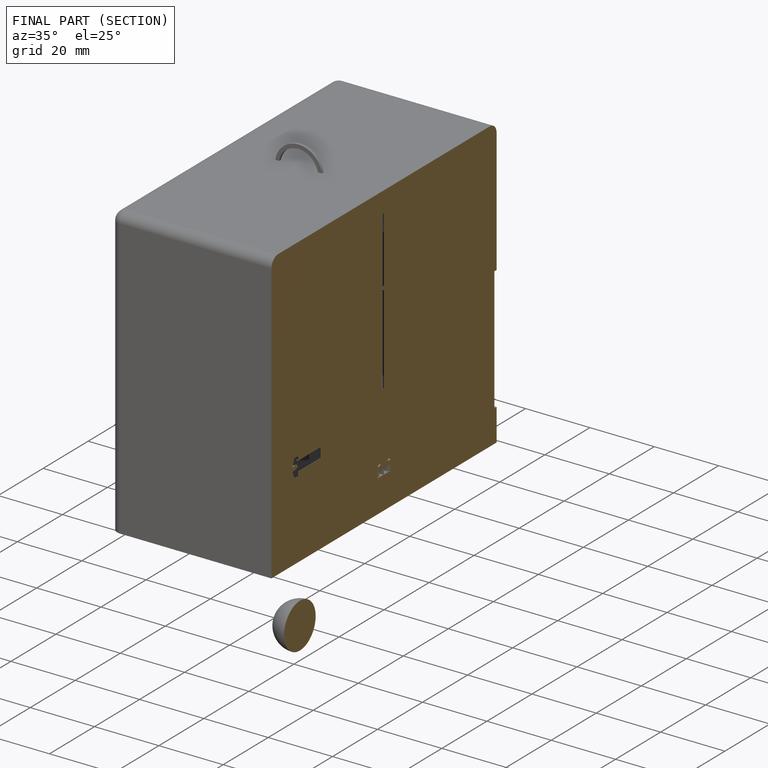
[diagram: finished part — half-section view (interior)]
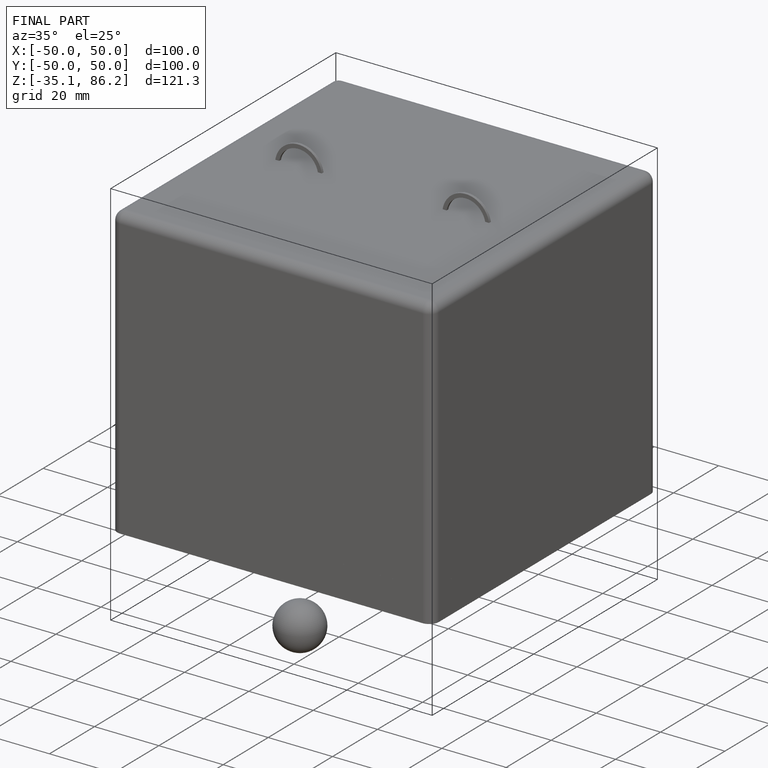
[diagram: finished part — iso view with bounding-box wireframe]
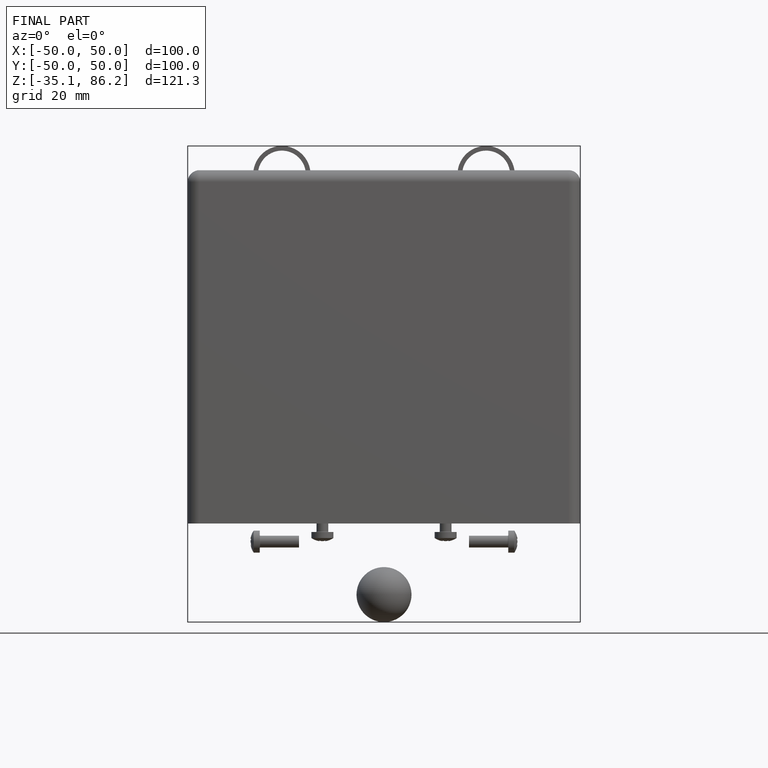
[diagram: finished part — front view with bounding-box wireframe]
